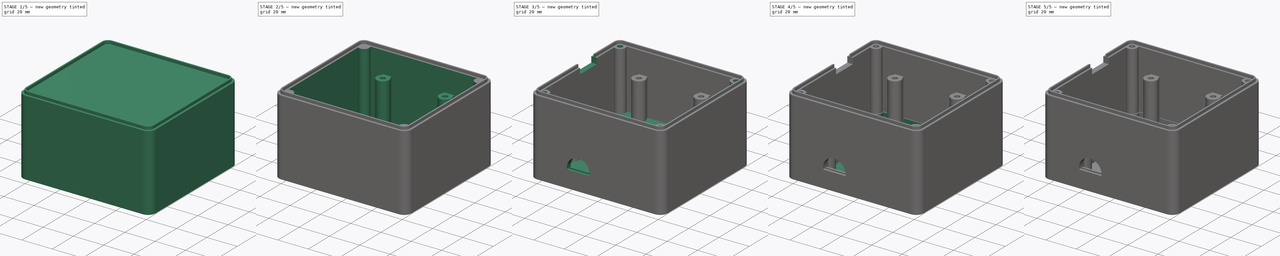
[diagram: build sequence overview — one tinted view per stage of 5, left to right]
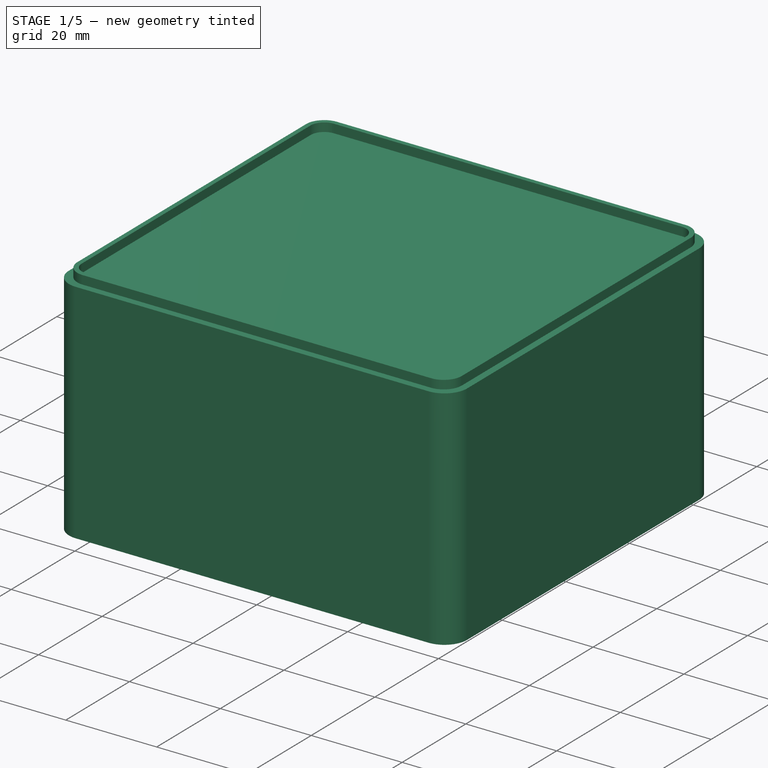
[diagram: stage 1 of 5 — iso view after this stage's code; geometry added in this stage tinted green]
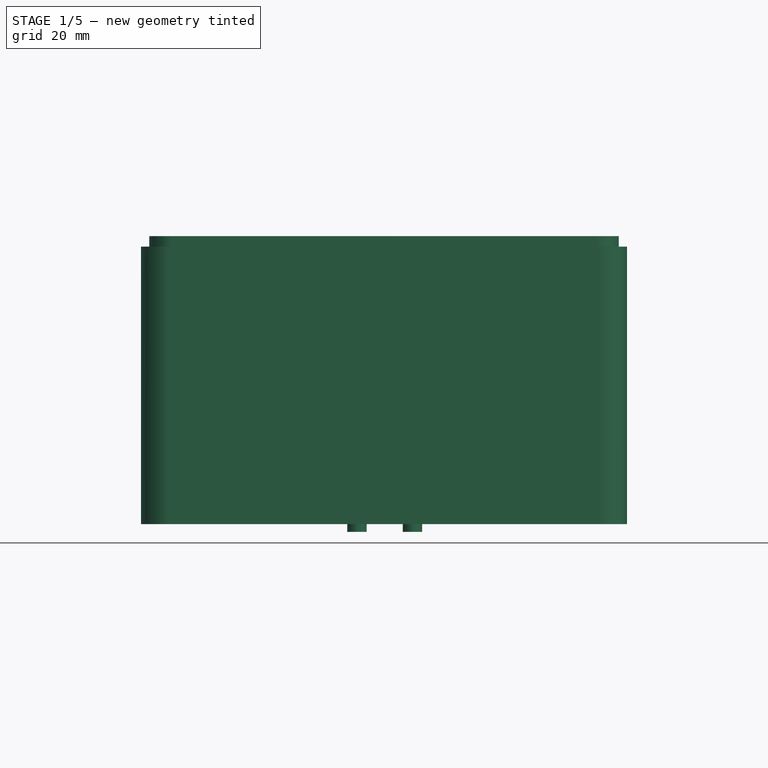
[diagram: stage 1 of 5 — front view after this stage's code; geometry added in this stage tinted green]
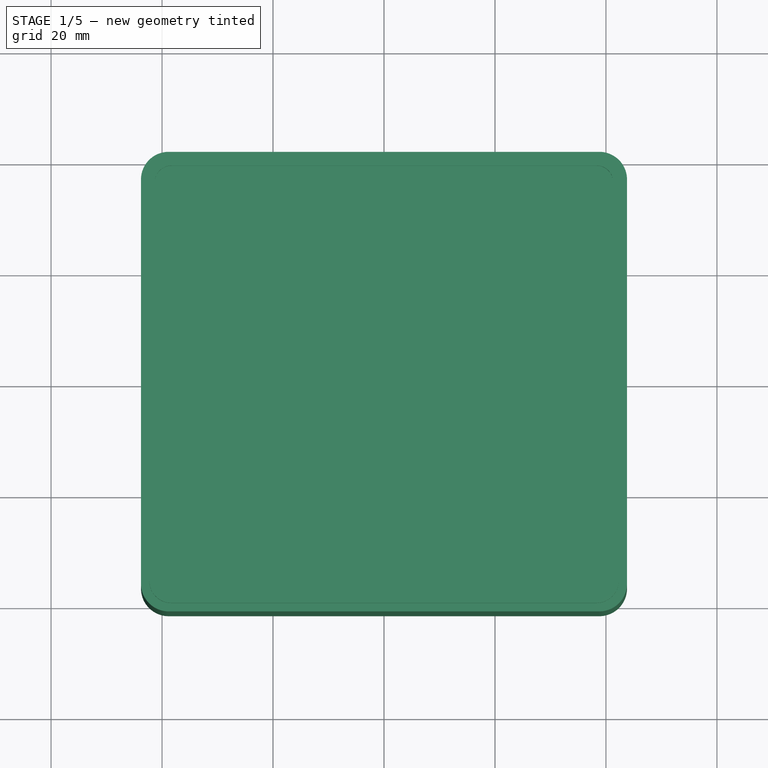
[diagram: stage 1 of 5 — top view after this stage's code; geometry added in this stage tinted green]
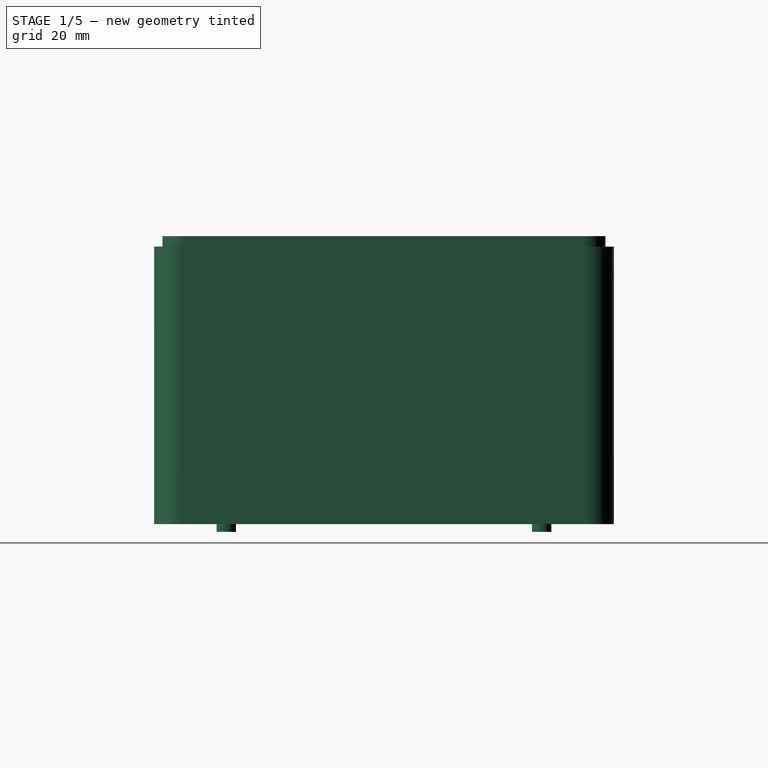
[diagram: stage 1 of 5 — right view after this stage's code; geometry added in this stage tinted green]
FCSTD DOCUMENT  (FreeCAD 0.20R29410 (Git))
Label: CASE DEFINITIVO MUTÁVEL VS 3.1
License: All rights reserved
LicenseURL: http://en.wikipedia.org/wiki/All_rights_reserved
objects: Sketcher::SketchObject×25, PartDesign::Pad×13, PartDesign::Plane×12, PartDesign::Pocket×9, PartDesign::Hole×6, PartDesign::Body×3, PartDesign::Chamfer×2
note: 100 computed .brp shape members not serialized (recipe doc carries the construction recipe); baked Part::Feature solids carry a one-line shape summary decoded from their .brp

FEATURE [Sketcher::SketchObject] Sketch  label="CASE_BRUTO"
  FullyConstrained = true
  MapMode = 5
  Support = -> [XY_Plane]
  sketch-geometry (10):
    g0: ArcOfCircle CenterX=-38.8 CenterY=36.42 CenterZ=0 NormalX=0 NormalY=0 NormalZ=1 AngleXU=0 Radius=5 StartAngle=1.5708 EndAngle=3.14159
    g1: LineSegment StartX=-38.8 StartY=41.42 StartZ=0 EndX=38.8 EndY=41.42 EndZ=0
    g2: ArcOfCircle CenterX=38.8 CenterY=36.42 CenterZ=0 NormalX=0 NormalY=0 NormalZ=1 AngleXU=0 Radius=5 StartAngle=5.1e-15 EndAngle=1.5708
    g3: LineSegment StartX=43.8 StartY=36.42 StartZ=0 EndX=43.8 EndY=-36.42 EndZ=0
    g4: ArcOfCircle CenterX=38.8 CenterY=-36.42 CenterZ=0 NormalX=0 NormalY=0 NormalZ=1 AngleXU=0 Radius=5 StartAngle=4.71239 EndAngle=6.28319
    g5: LineSegment StartX=38.8 StartY=-41.42 StartZ=0 EndX=-38.8 EndY=-41.42 EndZ=0
    g6: ArcOfCircle CenterX=-38.8 CenterY=-36.42 CenterZ=0 NormalX=0 NormalY=0 NormalZ=1 AngleXU=0 Radius=5 StartAngle=3.14159 EndAngle=4.71239
    g7: LineSegment StartX=-43.8 StartY=-36.42 StartZ=0 EndX=-43.8 EndY=36.42 EndZ=0
    g8: GeomPoint X=-43.8 Y=41.42 Z=0
    g9: GeomPoint X=43.8 Y=-41.42 Z=0
  constraints (23):
    c: Tangent(g0,g1) = 1.5708
    c: Tangent(g1,g2) = 1.5708
    c: Tangent(g2,g3) = 1.5708
    c: Tangent(g3,g4) = 1.5708
    c: Tangent(g4,g5) = 1.5708
    c: Tangent(g5,g6) = 1.5708
    c: Tangent(g6,g7) = 1.5708
    c: Tangent(g7,g0) = 1.5708
    c: Horizontal(g1)
    c: Horizontal(g5)
    c: Vertical(g3)
    c: Vertical(g7)
    c: Equal(g0,g2)
    c: Equal(g2,g4)
    c: Equal(g4,g6)
    c: PointOnObject(g8,g1)
    c: PointOnObject(g8,g7)
    c: PointOnObject(g9,g3)
    c: PointOnObject(g9,g5)
    c: DistanceX(g1,g1) = 77.6
    c: DistanceY(g3,g3) = 72.84
    c: Radius(g2) = 5
    c: Symmetric(g2,g6,g-1)
FEATURE [PartDesign::Pad] Pad  label="EXTRUSAO_CASE_BRUTO"
  Direction = (0,0,1)
  Length = 50
  Length2 = 10
  Profile = -> Sketch
  ReferenceAxis = -> Sketch [N_Axis]
  Type = 0
FEATURE [Sketcher::SketchObject] Sketch001  label="ENCAIXE_TAMPA"
  AttachmentOffset = pos=(0,0,50) rot=(0,0,1;0rad)
  ExternalGeometry = -> [Pad]
  FullyConstrained = true
  MapMode = 5
  Placement = pos=(0,0,50) rot=(0,0,1;0rad)
  Support = -> [XY_Plane]
  expr: .AttachmentOffset.Base.z = <<EXTRUSAO_CASE_BRUTO>>.Length
  sketch-geometry (20):
    g0: ArcOfCircle CenterX=-38.3 CenterY=35.92 CenterZ=0 NormalX=0 NormalY=0 NormalZ=1 AngleXU=0 Radius=4 StartAngle=1.5708 EndAngle=3.14159
    g1: LineSegment StartX=-38.3 StartY=39.92 StartZ=0 EndX=38.3 EndY=39.92 EndZ=0
    g2: ArcOfCircle CenterX=38.3 CenterY=35.92 CenterZ=0 NormalX=0 NormalY=0 NormalZ=1 AngleXU=0 Radius=4 StartAngle=3e-16 EndAngle=1.5708
    g3: LineSegment StartX=42.3 StartY=35.92 StartZ=0 EndX=42.3 EndY=-35.92 EndZ=0
    g4: ArcOfCircle CenterX=38.3 CenterY=-35.92 CenterZ=0 NormalX=0 NormalY=0 NormalZ=1 AngleXU=0 Radius=4 StartAngle=4.71239 EndAngle=6.28319
    g5: LineSegment StartX=38.3 StartY=-39.92 StartZ=0 EndX=-38.3 EndY=-39.92 EndZ=0
    g6: ArcOfCircle CenterX=-38.3 CenterY=-35.92 CenterZ=0 NormalX=0 NormalY=0 NormalZ=1 AngleXU=0 Radius=4 StartAngle=3.14159 EndAngle=4.71239
    g7: LineSegment StartX=-42.3 StartY=-35.92 StartZ=0 EndX=-42.3 EndY=35.92 EndZ=0
    g8: GeomPoint X=-42.3 Y=39.92 Z=0
    g9: GeomPoint X=42.3 Y=-39.92 Z=0
    g10: ArcOfCircle CenterX=-38.3 CenterY=35.92 CenterZ=0 NormalX=0 NormalY=0 NormalZ=1 AngleXU=0 Radius=3 StartAngle=1.5708 EndAngle=3.14159
    g11: LineSegment StartX=-38.3 StartY=38.92 StartZ=0 EndX=38.3 EndY=38.92 EndZ=0
    g12: ArcOfCircle CenterX=38.3 CenterY=35.92 CenterZ=0 NormalX=0 NormalY=0 NormalZ=1 AngleXU=0 Radius=3 StartAngle=1.2e-15 EndAngle=1.5708
    g13: LineSegment StartX=41.3 StartY=35.92 StartZ=0 EndX=41.3 EndY=-35.92 EndZ=0
    g14: ArcOfCircle CenterX=38.3 CenterY=-35.92 CenterZ=0 NormalX=0 NormalY=0 NormalZ=1 AngleXU=0 Radius=3 StartAngle=4.71239 EndAngle=6.28319
    g15: LineSegment StartX=38.3 StartY=-38.92 StartZ=0 EndX=-38.3 EndY=-38.92 EndZ=0
    g16: ArcOfCircle CenterX=-38.3 CenterY=-35.92 CenterZ=0 NormalX=0 NormalY=0 NormalZ=1 AngleXU=0 Radius=3 StartAngle=3.14159 EndAngle=4.71239
    g17: LineSegment StartX=-41.3 StartY=-35.92 StartZ=0 EndX=-41.3 EndY=35.92 EndZ=0
    g18: GeomPoint X=-41.3 Y=38.92 Z=0
    g19: GeomPoint X=41.3 Y=-38.92 Z=0
  constraints (47):
    c: Tangent(g0,g1) = 1.5708
    c: Tangent(g1,g2) = 1.5708
    c: Tangent(g2,g3) = 1.5708
    c: Tangent(g3,g4) = 1.5708
    c: Tangent(g4,g5) = 1.5708
    c: Tangent(g5,g6) = 1.5708
    c: Tangent(g6,g7) = 1.5708
    c: Tangent(g7,g0) = 1.5708
    c: Horizontal(g1)
    c: Horizontal(g5)
    c: Vertical(g3)
    c: Vertical(g7)
    c: Equal(g0,g2)
    c: Equal(g2,g4)
    c: Equal(g4,g6)
    c: PointOnObject(g8,g1)
    c: PointOnObject(g8,g7)
    c: PointOnObject(g9,g3)
    c: PointOnObject(g9,g5)
    c: DistanceX(g-10,g0) = 1.5
    c: DistanceY(g-8,g5) = 1.5
    c: Radius(g0) = 4
    c: DistanceY(g0,g-10) = 1.5
    c: DistanceX(g2,g-5) = 1.5
    c: Tangent(g10,g11) = 1.5708
    c: Tangent(g11,g12) = 1.5708
    c: Tangent(g12,g13) = 1.5708
    c: Tangent(g13,g14) = 1.5708
    c: Tangent(g14,g15) = 1.5708
    c: Tangent(g15,g16) = 1.5708
    c: Tangent(g16,g17) = 1.5708
    c: Tangent(g17,g10) = 1.5708
    c: Horizontal(g11)
    c: Horizontal(g15)
    c: Vertical(g13)
    c: Vertical(g17)
    c: Equal(g10,g12)
    c: Equal(g12,g14)
    c: Equal(g14,g16)
    c: PointOnObject(g18,g11)
    c: PointOnObject(g18,g17)
    c: PointOnObject(g19,g13)
    c: PointOnObject(g19,g15)
    c: Radius(g12) = 3
    c: Symmetric(g12,g16,g-1)
    c: DistanceX(g13,g3) = 1
    c: DistanceY(g5,g15) = 1
FEATURE [PartDesign::Pad] Pad001  label="ENCAIXE_TAMPA001"
  BaseFeature = -> Pad
  Direction = (0,0,1)
  Length = 1.9
  Length2 = 10
  Profile = -> Sketch001
  ReferenceAxis = -> Sketch001 [N_Axis]
  Type = 0
FEATURE [PartDesign::Body] Body  label="CASE_NO_BREAKABLE"
  Group = -> [Sketch,Pad,Sketch001,Pad001,DatumPlane,Sketch006,Pocket,Sketch007,Pad002,DatumPlane002,Sketch008,Pad003,DatumPlane003,Sketch009,Pad004,Hole,DatumPlane004,Sketch010,Pad005,DatumPlane006,Sketch012,Pocket002,DatumPlane007,Sketch013,Sketch034,Hole004,Hole005,DatumPlane012,Sketch036,Pocket012]
  Origin = -> Origin
  Placement = pos=(0,0,232) rot=(0,0,1;0rad)
  Tip = -> Pocket012
FEATURE [PartDesign::Plane] DatumPlane013  label="DATUM_BASE"
  Length = 61.1212
  MapMode = 5
  ResizeMode = 0
  Support = -> [XY_Plane002]
  Width = 72.9612
FEATURE [Sketcher::SketchObject] Sketch037  label="SKETCH_BASE"
  FullyConstrained = true
  MapMode = 5
  Support = -> [DatumPlane013]
  sketch-geometry (4):
    g0: LineSegment StartX=-9.35 StartY=30.92 StartZ=0 EndX=9.35 EndY=30.92 EndZ=0
    g1: LineSegment StartX=9.35 StartY=30.92 StartZ=0 EndX=9.35 EndY=-30.92 EndZ=0
    g2: LineSegment StartX=9.35 StartY=-30.92 StartZ=0 EndX=-9.35 EndY=-30.92 EndZ=0
    g3: LineSegment StartX=-9.35 StartY=-30.92 StartZ=0 EndX=-9.35 EndY=30.92 EndZ=0
  constraints (11):
    c: Coincident(g0,g1)
    c: Coincident(g1,g2)
    c: Coincident(g2,g3)
    c: Coincident(g3,g0)
    c: Horizontal(g0)
    c: Horizontal(g2)
    c: Vertical(g1)
    c: Vertical(g3)
    c: Symmetric(g0,g2,g-1)
    c: DistanceY(g1,g1) = 61.84
    c: DistanceX(g0,g0) = 18.7
FEATURE [PartDesign::Pad] Pad011  label="PAD_BASE"
  Direction = (0,0,1)
  Length = 2
  Length2 = 10
  Profile = -> Sketch037
  ReferenceAxis = -> Sketch037 [N_Axis]
  Type = 0
FEATURE [PartDesign::Plane] DatumPlane014  label="DATUM_PARAFUSOS"
  AttachmentOffset = pos=(0,0,2) rot=(0,0,1;0rad)
  Length = 61.1212
  MapMode = 5
  Placement = pos=(0,0,2) rot=(0,0,1;0rad)
  ResizeMode = 0
  Support = -> [XY_Plane002]
  Width = 72.9612
  expr: .AttachmentOffset.Base.z = <<PAD_BASE>>.Length
FEATURE [Sketcher::SketchObject] Sketch038  label="SKETCH_PARAFUSOS"
  ExternalGeometry = -> [Pad011]
  FullyConstrained = true
  MapMode = 5
  Placement = pos=(0,0,2) rot=(0,0,1;0rad)
  Support = -> [DatumPlane014]
  sketch-geometry (4):
    g0: Circle CenterX=-4.88 CenterY=28.42 CenterZ=0 NormalX=0 NormalY=0 NormalZ=1 AngleXU=0 Radius=1.75
    g1: Circle CenterX=5.12 CenterY=28.42 CenterZ=0 NormalX=0 NormalY=0 NormalZ=1 AngleXU=0 Radius=1.75
    g2: Circle CenterX=-4.88 CenterY=-28.42 CenterZ=0 NormalX=0 NormalY=0 NormalZ=1 AngleXU=0 Radius=1.75
    g3: Circle CenterX=5.12 CenterY=-28.42 CenterZ=0 NormalX=0 NormalY=0 NormalZ=1 AngleXU=0 Radius=1.75
  constraints (12):
    c: DistanceY(g1,g-3) = 2.5
    c: DistanceY(g0,g-3) = 2.5
    c: Diameter(g0) = 3.5
    c: DistanceX(g0,g1) = 10
    c: Diameter(g1) = 3.5
    c: Equal(g3,g2)
    c: Diameter(g3) = 3.5
    c: Vertical(g2,g0)
    c: Vertical(g3,g1)
    c: DistanceY(g2,g0) = 56.84
    c: DistanceY(g3,g1) = 56.84
    c: DistanceX(g1,g-4) = 4.23
FEATURE [PartDesign::Plane] DatumPlane015  label="DATUM_BOTOES"
  Length = 61.1212
  MapMode = 5
  ResizeMode = 0
  Support = -> [XY_Plane002]
  Width = 72.9612
FEATURE [Sketcher::SketchObject] Sketch039  label="SKETCH_BOTOES"
  FullyConstrained = false
  MapMode = 5
  Support = -> [DatumPlane015]
  sketch-geometry (18):
    g0: LineSegment StartX=6.5 StartY=21.92 StartZ=0 EndX=-6.5 EndY=21.92 EndZ=0
    g1: LineSegment StartX=-6.5 StartY=21.92 StartZ=0 EndX=-6.5 EndY=9.92 EndZ=0
    g2: LineSegment StartX=-6.5 StartY=9.92 StartZ=0 EndX=6.5 EndY=9.92 EndZ=0
    g3: LineSegment StartX=6.5 StartY=9.92 StartZ=0 EndX=6.5 EndY=21.92 EndZ=0
    g4: GeomPoint X=0 Y=15.92 Z=0
    g5: Circle CenterX=0 CenterY=15.92 CenterZ=0 NormalX=0 NormalY=0 NormalZ=1 AngleXU=0 Radius=3.5
    g6: LineSegment StartX=6.5 StartY=5.42 StartZ=0 EndX=-6.5 EndY=5.42 EndZ=0
    g7: LineSegment StartX=-6.5 StartY=5.42 StartZ=0 EndX=-6.5 EndY=-6.58 EndZ=0
    g8: LineSegment StartX=-6.5 StartY=-6.58 StartZ=0 EndX=6.5 EndY=-6.58 EndZ=0
    g9: LineSegment StartX=6.5 StartY=-6.58 StartZ=0 EndX=6.5 EndY=5.42 EndZ=0
    g10: GeomPoint X=0 Y=-0.58 Z=0
    g11: LineSegment StartX=6.5 StartY=-11.08 StartZ=0 EndX=-6.5 EndY=-11.08 EndZ=0
    g12: LineSegment StartX=-6.5 StartY=-11.08 StartZ=0 EndX=-6.5 EndY=-23.08 EndZ=0
    g13: LineSegment StartX=-6.5 StartY=-23.08 StartZ=0 EndX=6.5 EndY=-23.08 EndZ=0
    g14: LineSegment StartX=6.5 StartY=-23.08 StartZ=0 EndX=6.5 EndY=-11.08 EndZ=0
    g15: GeomPoint X=0 Y=-17.08 Z=0
    g16: Circle CenterX=0 CenterY=-0.58 CenterZ=0 NormalX=0 NormalY=0 NormalZ=1 AngleXU=0 Radius=3.5
    g17: Circle CenterX=0 CenterY=-17.08 CenterZ=0 NormalX=0 NormalY=0 NormalZ=1 AngleXU=0 Radius=3.5
  constraints (44):
    c: Coincident(g0,g1)
    c: Coincident(g1,g2)
    c: Coincident(g2,g3)
    c: Coincident(g3,g0)
    c: Horizontal(g0)
    c: Horizontal(g2)
    c: Vertical(g1)
    c: Vertical(g3)
    c: DistanceX(g0,g0) = 13
    c: DistanceY(g1,g1) = 12
    c: PointOnObject(g4,g-2)
    c: Symmetric(g0,g2,g4)
    c: Coincident(g5,g4)
    c: Diameter(g5) = 7
    c: Coincident(g6,g7)
    c: Coincident(g7,g8)
    c: Coincident(g8,g9)
    c: Coincident(g9,g6)
    c: Horizontal(g6)
    c: Horizontal(g8)
    c: Vertical(g7)
    c: Vertical(g9)
    c: PointOnObject(g10,g-2)
    c: DistanceX(g6,g6) = 13
    c: DistanceY(g7,g7) = 12
    c: Symmetric(g6,g8,g10)
    c: DistanceY(g6,g2) = 4.5
    c: Coincident(g11,g12)
    c: Coincident(g12,g13)
    c: Coincident(g13,g14)
    c: Coincident(g14,g11)
    c: Horizontal(g11)
    c: Horizontal(g13)
    c: Vertical(g12)
    c: Vertical(g14)
    c: PointOnObject(g15,g-2)
    c: Symmetric(g11,g13,g15)
    c: DistanceX(g11,g11) = 13
    c: DistanceY(g12,g12) = 12
    c: DistanceY(g11,g7) = 4.5
    c: Coincident(g16,g10)
    c: Coincident(g17,g15)
    c: Equal(g16,g17)
    c: Diameter(g16) = 7
FEATURE [PartDesign::Pocket] Pocket013
  BaseFeature = -> Pad011
  Direction = (0,0,-1)
  Length = 5
  Length2 = 5
  Profile = -> Sketch039
  ReferenceAxis = -> Sketch039 [N_Axis]
  Reversed = true
  Type = 0
FEATURE [PartDesign::Pad] Pad012
  BaseFeature = -> Pocket013
  Direction = (0,0,1)
  Length = 3.4
  Length2 = 10
  Profile = -> Sketch038
  ReferenceAxis = -> Sketch038 [N_Axis]
  Reversed = true
  Type = 0
FEATURE [PartDesign::Hole] Hole006
  BaseFeature = -> Pad012
  CustomThreadClearance = 0
  Depth = 130.684
  DepthType = 1
  Diameter = 2.42
  DrillForDepth = false
  DrillPoint = 1
  DrillPointAngle = 118
  HoleCutCountersinkAngle = 90
  HoleCutCustomValues = false
  HoleCutDepth = 0
  HoleCutDiameter = 6.1
  HoleCutType = 0
  ModelThread = false
  Profile = -> Pad012 [Face20,Face21,Face19,Face18]
  Tapered = false
  TaperedAngle = 90
  ThreadClass = 0
  ThreadDepth = 130.684
  ThreadDepthType = 0
  ThreadDirection = 0
  ThreadFit = 0
  ThreadSize = 7
  ThreadType = 1
  Threaded = false
  UseCustomThreadClearance = false
FEATURE [PartDesign::Body] Body002  label="ENCAIXE_BOTOES"
  Group = -> [DatumPlane013,Sketch037,Pad011,DatumPlane014,Sketch038,DatumPlane015,Sketch039,Pocket013,Pad012,Hole006]
  Origin = -> Origin002
  Placement = pos=(30.25,0,285.65) rot=(0,0,1;0rad)
  Tip = -> Hole006
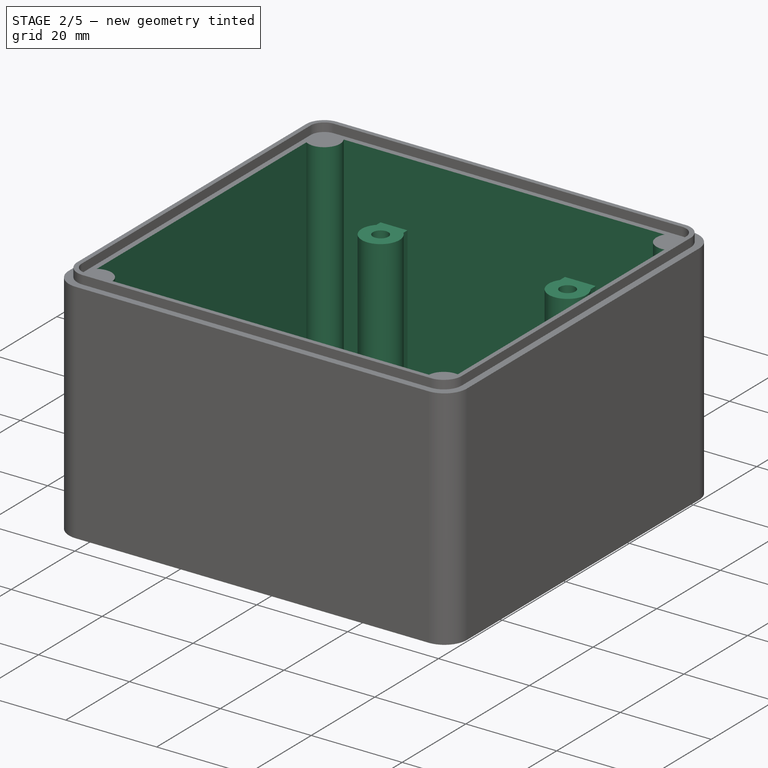
[diagram: stage 2 of 5 — iso view after this stage's code; geometry added in this stage tinted green]
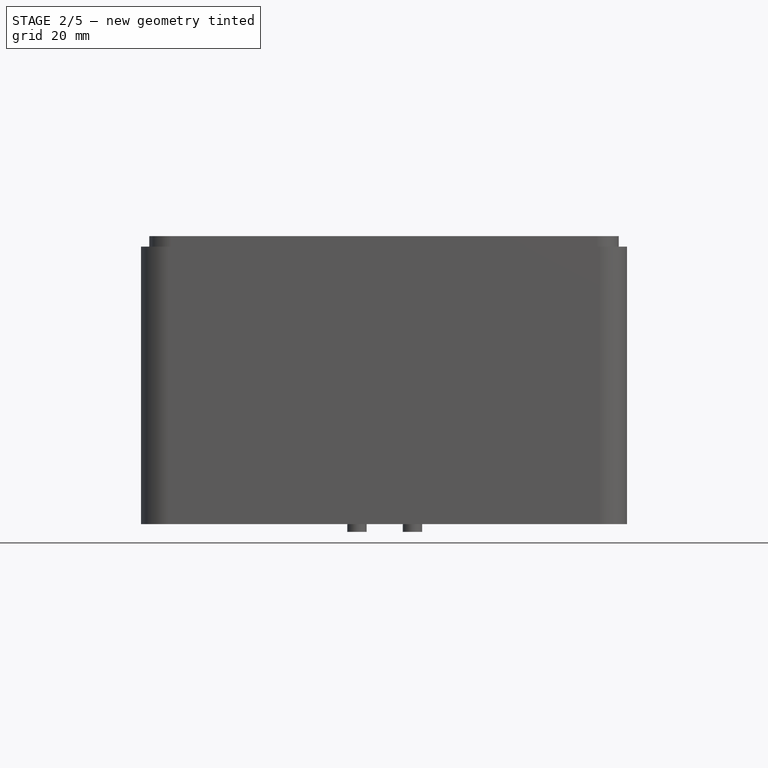
[diagram: stage 2 of 5 — front view after this stage's code; geometry added in this stage tinted green]
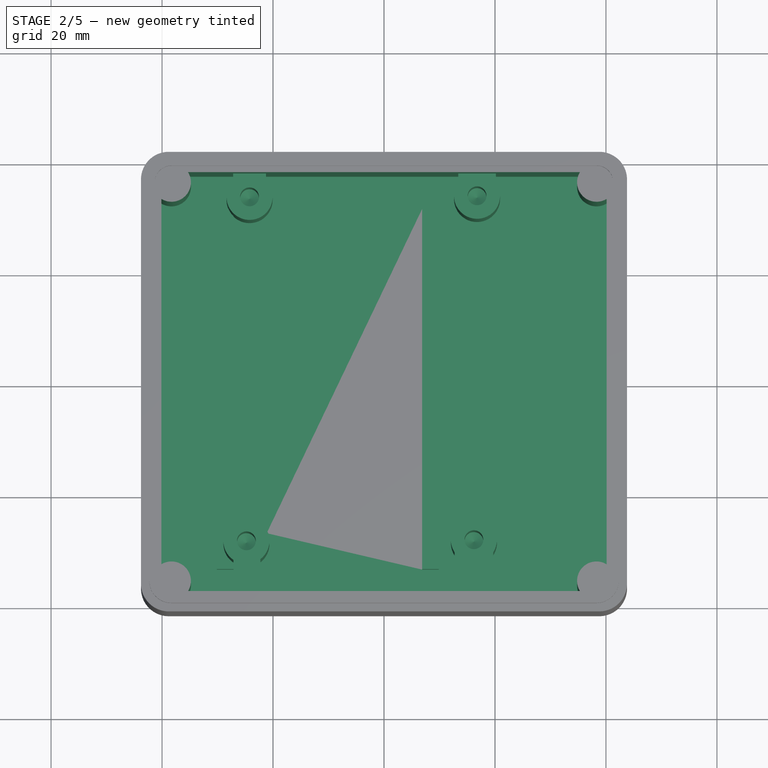
[diagram: stage 2 of 5 — top view after this stage's code; geometry added in this stage tinted green]
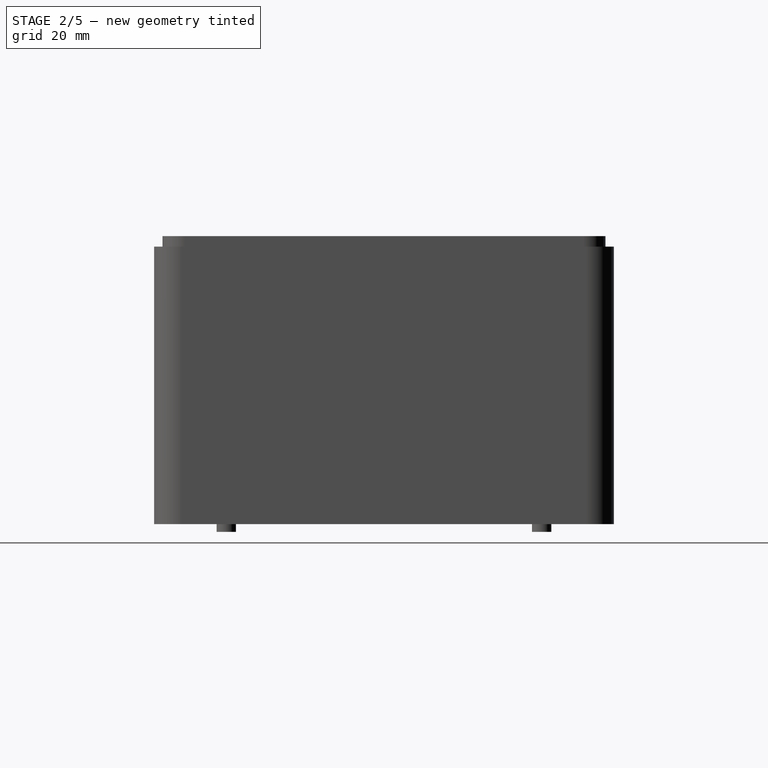
[diagram: stage 2 of 5 — right view after this stage's code; geometry added in this stage tinted green]
FEATURE [PartDesign::Plane] DatumPlane
  AttachmentOffset = pos=(0,0,50) rot=(0,0,1;0rad)
  Length = 104.637
  MapMode = 5
  Placement = pos=(0,0,50) rot=(0,0,1;0rad)
  ResizeMode = 0
  Support = -> [XY_Plane]
  Width = 99.8773
  expr: .AttachmentOffset.Base.z = <<EXTRUSAO_CASE_BRUTO>>.Length
FEATURE [Sketcher::SketchObject] Sketch006
  ExternalGeometry = -> [Pad001]
  FullyConstrained = true
  MapMode = 5
  Placement = pos=(0,0,50) rot=(0,0,1;0rad)
  Support = -> [DatumPlane]
  sketch-geometry (8):
    g0: LineSegment StartX=-40.13 StartY=32.9365 StartZ=0 EndX=-40.13 EndY=-32.9365 EndZ=0
    g1: LineSegment StartX=40.13 StartY=32.9365 StartZ=0 EndX=40.13 EndY=-32.9365 EndZ=0
    g2: LineSegment StartX=-35.3165 StartY=-37.75 StartZ=0 EndX=35.3165 EndY=-37.75 EndZ=0
    g3: LineSegment StartX=-35.3165 StartY=37.75 StartZ=0 EndX=35.3165 EndY=37.75 EndZ=0
    g4: ArcOfCircle CenterX=38.3 CenterY=35.92 CenterZ=0 NormalX=0 NormalY=0 NormalZ=1 AngleXU=0 Radius=3.5 StartAngle=2.59139 EndAngle=5.26259
    g5: ArcOfCircle CenterX=-38.3 CenterY=-35.92 CenterZ=0 NormalX=0 NormalY=0 NormalZ=1 AngleXU=0 Radius=3.5 StartAngle=5.73299 EndAngle=8.40418
    g6: ArcOfCircle CenterX=38.3 CenterY=-35.92 CenterZ=0 NormalX=0 NormalY=0 NormalZ=1 AngleXU=0 Radius=3.5 StartAngle=1.0206 EndAngle=3.69179
    g7: ArcOfCircle CenterX=-38.3 CenterY=35.92 CenterZ=0 NormalX=0 NormalY=0 NormalZ=1 AngleXU=0 Radius=3.5 StartAngle=4.16219 EndAngle=6.83338
  constraints (24):
    c: Vertical(g0)
    c: Vertical(g1)
    c: Horizontal(g2)
    c: Horizontal(g3)
    c: Coincident(g4,g-10)
    c: Coincident(g4,g3)
    c: Coincident(g4,g1)
    c: Coincident(g5,g-6)
    c: Coincident(g5,g0)
    c: Coincident(g5,g2)
    c: Coincident(g6,g-8)
    c: Coincident(g6,g1)
    c: Coincident(g6,g2)
    c: Radius(g5) = 3.5
    c: DistanceX(g-6,g0) = 1.17
    c: DistanceY(g-7,g2) = 1.17
    c: DistanceX(g1,g-9) = 1.17
    c: DistanceY(g3,g-10) = 1.17
    c: Equal(g4,g6)
    c: Coincident(g7,g-3)
    c: Coincident(g7,g3)
    c: Coincident(g7,g0)
    c: Equal(g5,g7)
    c: Equal(g7,g4)
FEATURE [PartDesign::Pocket] Pocket  label="FUNDO_CASE"
  BaseFeature = -> Pad001
  Direction = (0,0,-1)
  Length = 47.8
  Length2 = 5
  Profile = -> Sketch006
  ReferenceAxis = -> Sketch006 [N_Axis]
  Type = 0
FEATURE [Sketcher::SketchObject] Sketch007  label="MARCACAO_FURO"
  ExternalGeometry = -> [Pocket]
  FullyConstrained = true
  MapMode = 5
  Placement = pos=(0,0,2.2) rot=(0,0,1;0rad)
  sketch-geometry (18):
    g0: Circle CenterX=-24.23 CenterY=33.55 CenterZ=0 NormalX=0 NormalY=0 NormalZ=1 AngleXU=0 Radius=1.5
    g1: Circle CenterX=16.77 CenterY=33.75 CenterZ=0 NormalX=0 NormalY=0 NormalZ=1 AngleXU=0 Radius=1.5
    g2: Circle CenterX=-24.8 CenterY=-28.45 CenterZ=0 NormalX=0 NormalY=0 NormalZ=1 AngleXU=0 Radius=1.5
    g3: Circle CenterX=16.2 CenterY=-28.25 CenterZ=0 NormalX=0 NormalY=0 NormalZ=1 AngleXU=0 Radius=1.5
    g4: LineSegment StartX=-24.23 StartY=33.55 StartZ=0 EndX=-24.23 EndY=35.05 EndZ=0
    g5: LineSegment StartX=-24.23 StartY=35.05 StartZ=0 EndX=-24.23 EndY=37.75 EndZ=0
    g6: LineSegment StartX=-22.73 StartY=33.55 StartZ=0 EndX=-40.13 EndY=33.55 EndZ=0
    g7: GeomPoint X=-25.73 Y=33.55 Z=0
    g8: LineSegment StartX=16.77 StartY=33.75 StartZ=0 EndX=16.77 EndY=37.75 EndZ=0
    g9: LineSegment StartX=16.77 StartY=33.75 StartZ=0 EndX=15.27 EndY=33.75 EndZ=0
    g10: LineSegment StartX=16.77 StartY=33.75 StartZ=0 EndX=16.77 EndY=32.25 EndZ=0
    g11: GeomPoint X=16.77 Y=35.25 Z=0
    g12: LineSegment StartX=-24.23 StartY=33.55 StartZ=0 EndX=-24.23 EndY=32.05 EndZ=0
    g13: LineSegment StartX=-24.8 StartY=-28.45 StartZ=0 EndX=-24.8 EndY=-26.95 EndZ=0
    g14: LineSegment StartX=-23.3 StartY=-28.45 StartZ=0 EndX=-40.13 EndY=-28.45 EndZ=0
    g15: GeomPoint X=-26.3 Y=-28.45 Z=0
    g16: LineSegment StartX=16.2 StartY=-28.25 StartZ=0 EndX=14.7 EndY=-28.25 EndZ=0
    g17: LineSegment StartX=16.2 StartY=-28.25 StartZ=0 EndX=16.2 EndY=-26.75 EndZ=0
  constraints (53):
    c: Diameter(g0) = 3
    c: Diameter(g1) = 3
    c: Diameter(g2) = 3
    c: Diameter(g3) = 3
    c: Coincident(g4,g0)
    c: PointOnObject(g4,g0)
    c: Vertical(g4)
    c: Coincident(g5,g4)
    c: PointOnObject(g5,g-3)
    c: Vertical(g5)
    c: PointOnObject(g6,g0)
    c: PointOnObject(g6,g-5)
    c: Horizontal(g6)
    c: DistanceY(g4,g5) = 2.7
    c: PointOnObject(g0,g6)
    c: PointOnObject(g7,g0)
    c: PointOnObject(g7,g6)
    c: DistanceX(g6,g7) = 14.4
    c: Coincident(g8,g1)
    c: Vertical(g8)
    c: Coincident(g9,g1)
    c: PointOnObject(g9,g1)
    c: Horizontal(g9)
    c: Coincident(g10,g1)
    c: PointOnObject(g10,g1)
    c: Vertical(g10)
    c: PointOnObject(g11,g1)
    c: PointOnObject(g11,g8)
    c: PointOnObject(g8,g-3)
    c: DistanceX(g6,g9) = 38
    c: DistanceY(g11,g8) = 2.5
    c: Coincident(g12,g0)
    c: PointOnObject(g12,g0)
    c: Vertical(g12)
    c: Coincident(g13,g2)
    c: PointOnObject(g13,g2)
    c: Vertical(g13)
    c: PointOnObject(g14,g2)
    c: PointOnObject(g14,g-5)
    c: Horizontal(g14)
    c: PointOnObject(g2,g14)
    c: PointOnObject(g15,g2)
    c: PointOnObject(g15,g14)
    c: DistanceX(g14,g15) = 13.83
    c: DistanceY(g13,g12) = 59
    c: Coincident(g16,g3)
    c: PointOnObject(g16,g3)
    c: Horizontal(g16)
    c: Coincident(g17,g3)
    c: PointOnObject(g17,g3)
    c: Vertical(g17)
    c: DistanceX(g14,g16) = 38
    c: DistanceY(g17,g10) = 59
FEATURE [PartDesign::Pad] Pad002  label="EXTRUSAO_MARCACAO_FURO"
  BaseFeature = -> Pocket
  Direction = (0,0,1)
  Length = 33.5
  Length2 = 10
  Profile = -> Sketch007
  ReferenceAxis = -> Sketch007 [N_Axis]
  Type = 0
FEATURE [PartDesign::Plane] DatumPlane002  label="DATUM_SEGURA_BATERIA"
  AttachmentOffset = pos=(0,0,2.2) rot=(0,0,1;0rad)
  Length = 104.637
  MapMode = 5
  Placement = pos=(0,0,2.2) rot=(0,0,1;0rad)
  ResizeMode = 0
  Support = -> [XY_Plane]
  Width = 99.8773
FEATURE [Sketcher::SketchObject] Sketch008  label="Sketch_SEGURA_BATERIA"
  ExternalGeometry = -> [Pad002]
  FullyConstrained = true
  MapMode = 5
  Placement = pos=(0,0,2.2) rot=(0,0,1;0rad)
  Support = -> [DatumPlane002]
  sketch-geometry (10):
    g0: LineSegment StartX=-30.13 StartY=31.95 StartZ=0 EndX=-27.13 EndY=31.95 EndZ=0
    g1: LineSegment StartX=-27.13 StartY=31.95 StartZ=0 EndX=-27.13 EndY=-33.05 EndZ=0
    g2: LineSegment StartX=-27.13 StartY=-33.05 StartZ=0 EndX=-30.13 EndY=-33.05 EndZ=0
    g3: LineSegment StartX=-30.13 StartY=-33.05 StartZ=0 EndX=-30.13 EndY=31.95 EndZ=0
    g4: LineSegment StartX=9.87 StartY=31.95 StartZ=0 EndX=6.87 EndY=31.95 EndZ=0
    g5: LineSegment StartX=6.87 StartY=31.95 StartZ=0 EndX=6.87 EndY=-33.05 EndZ=0
    g6: LineSegment StartX=6.87 StartY=-33.05 StartZ=0 EndX=9.87 EndY=-33.05 EndZ=0
    g7: LineSegment StartX=9.87 StartY=-33.05 StartZ=0 EndX=9.87 EndY=31.95 EndZ=0
    g8: LineSegment StartX=-30.13 StartY=31.95 StartZ=0 EndX=-40.13 EndY=31.95 EndZ=0
    g9: LineSegment StartX=-30.13 StartY=31.95 StartZ=0 EndX=-30.13 EndY=37.75 EndZ=0
  constraints (30):
    c: Coincident(g0,g1)
    c: Coincident(g1,g2)
    c: Coincident(g2,g3)
    c: Coincident(g3,g0)
    c: Horizontal(g0)
    c: Horizontal(g2)
    c: Vertical(g1)
    c: Vertical(g3)
    c: Coincident(g4,g5)
    c: Coincident(g5,g6)
    c: Coincident(g6,g7)
    c: Coincident(g7,g4)
    c: Horizontal(g4)
    c: Horizontal(g6)
    c: Vertical(g5)
    c: Vertical(g7)
    c: Coincident(g8,g0)
    c: PointOnObject(g8,g-3)
    c: Horizontal(g8)
    c: Coincident(g9,g0)
    c: PointOnObject(g9,g-4)
    c: Vertical(g9)
    c: DistanceY(g9,g9) = 5.8
    c: DistanceX(g8,g8) = 10
    c: DistanceX(g2,g2) = 3
    c: DistanceX(g6,g6) = 3
    c: DistanceY(g7,g7) = 65
    c: DistanceY(g3,g3) = 65
    c: DistanceX(g0,g4) = 34
    c: Horizontal(g4,g0)
FEATURE [PartDesign::Pad] Pad003  label="EXTRUSAO_SEGURA_BATERIA"
  BaseFeature = -> Pad002
  Direction = (0,0,1)
  Length = 5
  Length2 = 10
  Profile = -> Sketch008
  ReferenceAxis = -> Sketch008 [N_Axis]
  Type = 0
FEATURE [PartDesign::Plane] DatumPlane003  label="DATUM_SUPORTE_PLACA"
  AttachmentOffset = pos=(0,0,2.2) rot=(0,0,1;0rad)
  Length = 104.637
  MapMode = 5
  Placement = pos=(0,0,2.2) rot=(0,0,1;0rad)
  ResizeMode = 0
  Support = -> [XY_Plane]
  Width = 99.8773
FEATURE [Sketcher::SketchObject] Sketch009  label="SKETCH_SUPORTE_PLACA"
  ExternalGeometry = -> [Pad003]
  FullyConstrained = true
  MapMode = 5
  Placement = pos=(0,0,2.2) rot=(0,0,1;0rad)
  Support = -> [DatumPlane003]
  sketch-geometry (4):
    g0: Circle CenterX=-24.23 CenterY=33.55 CenterZ=0 NormalX=0 NormalY=0 NormalZ=1 AngleXU=0 Radius=4.15
    g1: Circle CenterX=16.77 CenterY=33.75 CenterZ=0 NormalX=0 NormalY=0 NormalZ=1 AngleXU=0 Radius=4.15
    g2: Circle CenterX=-24.8 CenterY=-28.45 CenterZ=0 NormalX=0 NormalY=0 NormalZ=1 AngleXU=0 Radius=4.15
    g3: Circle CenterX=16.2 CenterY=-28.25 CenterZ=0 NormalX=0 NormalY=0 NormalZ=1 AngleXU=0 Radius=4.15
  constraints (8):
    c: Coincident(g0,g-5)
    c: Coincident(g1,g-4)
    c: Coincident(g3,g-7)
    c: Equal(g2,g3)
    c: Equal(g3,g1)
    c: Equal(g1,g0)
    c: Diameter(g2) = 8.3
    c: Coincident(g2,g-6)
FEATURE [PartDesign::Pad] Pad004
  BaseFeature = -> Pad003
  Direction = (0,0,1)
  Length = 33.5
  Length2 = 10
  Profile = -> Sketch009
  ReferenceAxis = -> Sketch009 [N_Axis]
  Type = 0
FEATURE [Sketcher::SketchObject] Sketch034
  FullyConstrained = false
  MapMode = 5
  Placement = pos=(0,0,2.2) rot=(0,0,1;0rad)
  Support = -> [DatumPlane002]
  sketch-geometry (7):
    g0: Circle CenterX=-33.23 CenterY=-15 CenterZ=0 NormalX=0 NormalY=0 NormalZ=1 AngleXU=0 Radius=2.5
    g1: GeomPoint X=-30.23 Y=0 Z=0
    g2: GeomPoint X=9.77 Y=0 Z=0
    g3: Circle CenterX=28.77 CenterY=-15 CenterZ=0 NormalX=0 NormalY=0 NormalZ=1 AngleXU=0 Radius=2.5
    g4: Circle CenterX=-33.23 CenterY=15 CenterZ=0 NormalX=0 NormalY=0 NormalZ=1 AngleXU=0 Radius=2.5
    g5: GeomPoint X=-33.23 Y=1e-16 Z=0
    g6: Circle CenterX=28.77 CenterY=15 CenterZ=0 NormalX=0 NormalY=0 NormalZ=1 AngleXU=0 Radius=2.5
  constraints (14):
    c: Diameter(g0) = 5
    c: DistanceX(g0,g1) = 3
    c: Diameter(g3) = 5
    c: DistanceX(g2,g3) = 19
    c: PointOnObject(g2,g-1)
    c: PointOnObject(g1,g-1)
    c: Diameter(g4) = 5
    c: DistanceY(g0,g4) = 30
    c: PointOnObject(g5,g-1)
    c: Symmetric(g0,g4,g5)
    c: Horizontal(g3,g0)
    c: Diameter(g6) = 5
    c: Vertical(g3,g6)
    c: Horizontal(g6,g4)
FEATURE [PartDesign::Hole] Hole
  BaseFeature = -> Pad004
  CustomThreadClearance = 0
  Depth = 19
  DepthType = 0
  Diameter = 3.4
  DrillForDepth = false
  DrillPoint = 1
  DrillPointAngle = 120
  HoleCutCountersinkAngle = 90
  HoleCutCustomValues = false
  HoleCutDepth = 0
  HoleCutDiameter = 6.1
  HoleCutType = 0
  ModelThread = false
  Profile = -> Pad004 [Face53,Face59,Face60,Edge151,Face61]
  Tapered = false
  TaperedAngle = 90
  ThreadClass = 0
  ThreadDepth = 19
  ThreadDepthType = 0
  ThreadDirection = 0
  ThreadFit = 0
  ThreadSize = 9
  ThreadType = 1
  Threaded = false
  UseCustomThreadClearance = false
FEATURE [Sketcher::SketchObject] Sketch010  label="SKETCH_SEGUA_SUPORTE_PLACA"
  ExternalGeometry = -> [Hole]
  FullyConstrained = true
  MapMode = 5
  Placement = pos=(0,0,2.2) rot=(0,0,1;0rad)
  Support = -> [DatumPlane004]
  sketch-geometry (18):
    g0: LineSegment StartX=-27.1986 StartY=36.45 StartZ=0 EndX=-27.1986 EndY=37.75 EndZ=0
    g1: LineSegment StartX=-27.1986 StartY=37.75 StartZ=0 EndX=-21.2614 EndY=37.75 EndZ=0
    g2: LineSegment StartX=-21.2614 StartY=37.75 StartZ=0 EndX=-21.2614 EndY=36.45 EndZ=0
    g3: ArcOfCircle CenterX=16.77 CenterY=33.75 CenterZ=0 NormalX=0 NormalY=0 NormalZ=1 AngleXU=0 Radius=4.15 StartAngle=0.61666 EndAngle=1.30111
    g4: LineSegment StartX=17.8757 StartY=37.75 StartZ=0 EndX=20.1556 EndY=37.75 EndZ=0
    g5: LineSegment StartX=20.1556 StartY=37.75 StartZ=0 EndX=20.1556 EndY=36.15 EndZ=0
    g6: LineSegment StartX=15.6643 StartY=37.75 StartZ=0 EndX=13.3844 EndY=37.75 EndZ=0
    g7: LineSegment StartX=13.3844 StartY=37.75 StartZ=0 EndX=13.3844 EndY=36.15 EndZ=0
    g8: ArcOfCircle CenterX=16.77 CenterY=33.75 CenterZ=0 NormalX=0 NormalY=0 NormalZ=1 AngleXU=0 Radius=4.15 StartAngle=1.84048 EndAngle=2.52493
    g9: LineSegment StartX=-22.2836 StartY=-31.75 StartZ=0 EndX=-22.2836 EndY=-37.75 EndZ=0
    g10: LineSegment StartX=-22.2836 StartY=-37.75 StartZ=0 EndX=-27.13 EndY=-37.75 EndZ=0
    g11: LineSegment StartX=-27.13 StartY=-37.75 StartZ=0 EndX=-27.13 EndY=-31.8842 EndZ=0
    g12: ArcOfCircle CenterX=16.2 CenterY=-28.25 CenterZ=0 NormalX=0 NormalY=0 NormalZ=1 AngleXU=0 Radius=4.15 StartAngle=3.71748 EndAngle=5.7073
    g13: LineSegment StartX=12.7194 StartY=-30.51 StartZ=0 EndX=12.7194 EndY=-37.75 EndZ=0
    g14: LineSegment StartX=12.7194 StartY=-37.75 StartZ=0 EndX=19.6806 EndY=-37.75 EndZ=0
    g15: LineSegment StartX=19.6806 StartY=-37.75 StartZ=0 EndX=19.6806 EndY=-30.51 EndZ=0
    g16: ArcOfCircle CenterX=-24.23 CenterY=33.55 CenterZ=0 NormalX=0 NormalY=0 NormalZ=1 AngleXU=0 Radius=4.15 StartAngle=0.773712 EndAngle=2.36788
    g17: ArcOfCircle CenterX=-24.8 CenterY=-28.45 CenterZ=0 NormalX=0 NormalY=0 NormalZ=1 AngleXU=0 Radius=4.15 StartAngle=4.11626 EndAngle=5.36388
  constraints (54):
    c: Vertical(g0)
    c: Coincident(g1,g0)
    c: Horizontal(g1)
    c: Vertical(g2)
    c: Coincident(g1,g2)
    c: DistanceY(g2,g2) = 1.3
    c: DistanceY(g0,g0) = 1.3
    c: Horizontal(g4)
    c: Coincident(g5,g4)
    c: Vertical(g5)
    c: Horizontal(g6)
    c: Coincident(g7,g6)
    c: Vertical(g7)
    c: Coincident(g8,g7)
    c: Coincident(g3,g5)
    c: Equal(g3,g8)
    c: Coincident(g3,g4)
    c: Coincident(g8,g6)
    c: Coincident(g3,g8)
    c: DistanceY(g5,g5) = 1.6
    c: DistanceY(g7,g7) = 1.6
    c: Vertical(g9)
    c: Coincident(g10,g9)
    c: Horizontal(g10)
    c: Coincident(g11,g10)
    c: Vertical(g11)
    c: DistanceY(g9,g9) = 6
    c: Vertical(g13)
    c: Coincident(g14,g13)
    c: Horizontal(g14)
    c: Coincident(g15,g14)
    c: Vertical(g15)
    c: Coincident(g12,g15)
    c: Coincident(g12,g13)
    c: DistanceY(g15,g15) = 7.24
    c: DistanceY(g13,g13) = 7.24
    c: PointOnObject(g6,g-4)
    c: PointOnObject(g4,g-4)
    c: Coincident(g3,g-6)
    c: PointOnObject(g7,g-6)
    c: PointOnObject(g0,g-3)
    c: PointOnObject(g0,g-4)
    c: Coincident(g16,g-3)
    c: Coincident(g16,g2)
    c: PointOnObject(g16,g0)
    c: PointOnObject(g2,g-3)
    c: Coincident(g11,g-8)
    c: PointOnObject(g10,g-9)
    c: Coincident(g17,g-7)
    c: Coincident(g17,g11)
    c: Coincident(g17,g9)
    c: Coincident(g12,g-10)
    c: PointOnObject(g12,g-10)
    c: PointOnObject(g13,g-9)
FEATURE [PartDesign::Pad] Pad005
  BaseFeature = -> Hole
  Direction = (0,0,1)
  Length = 33.5
  Length2 = 10
  Profile = -> Sketch010
  ReferenceAxis = -> Sketch010 [N_Axis]
  Type = 0
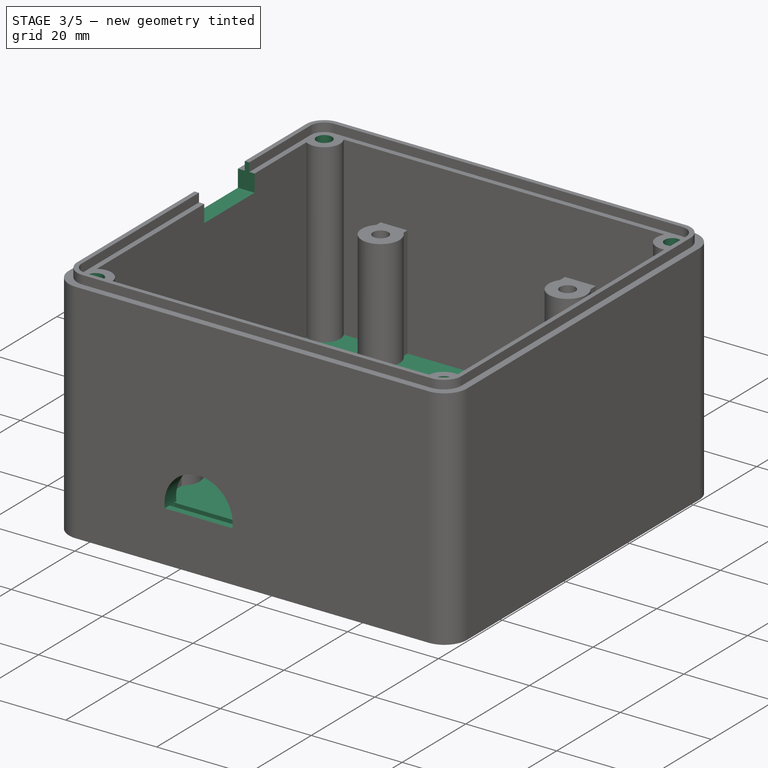
[diagram: stage 3 of 5 — iso view after this stage's code; geometry added in this stage tinted green]
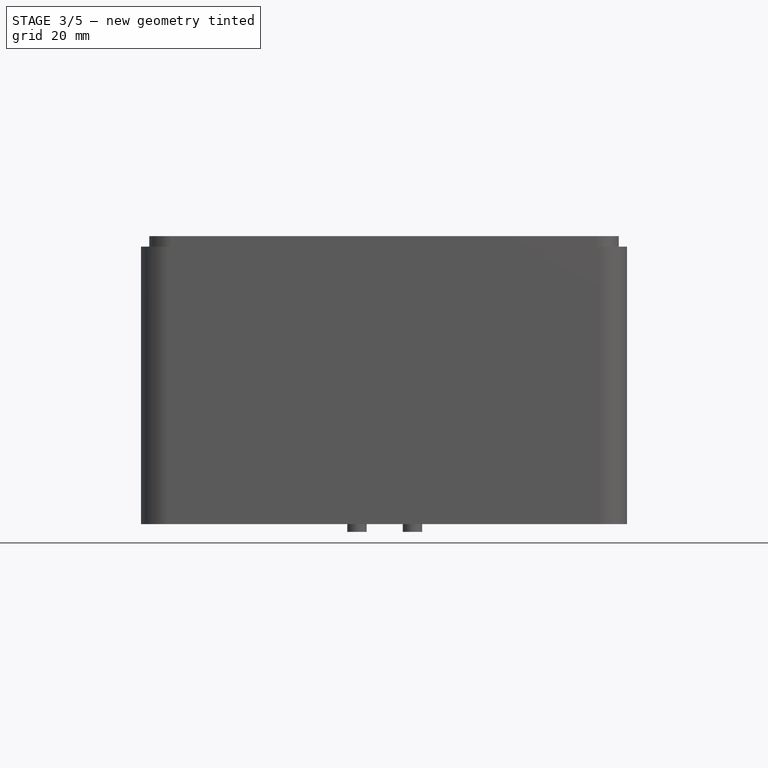
[diagram: stage 3 of 5 — front view after this stage's code; geometry added in this stage tinted green]
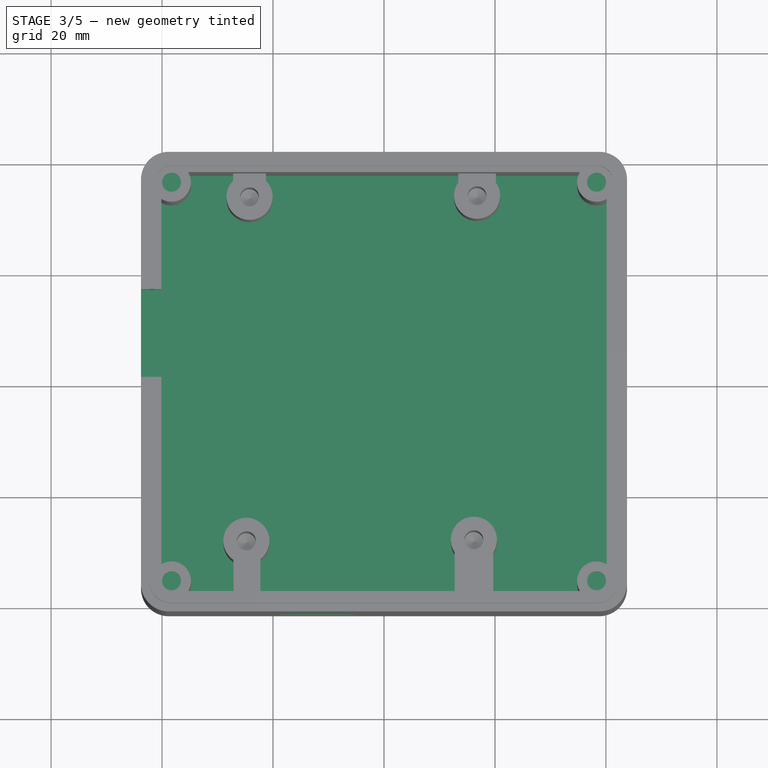
[diagram: stage 3 of 5 — top view after this stage's code; geometry added in this stage tinted green]
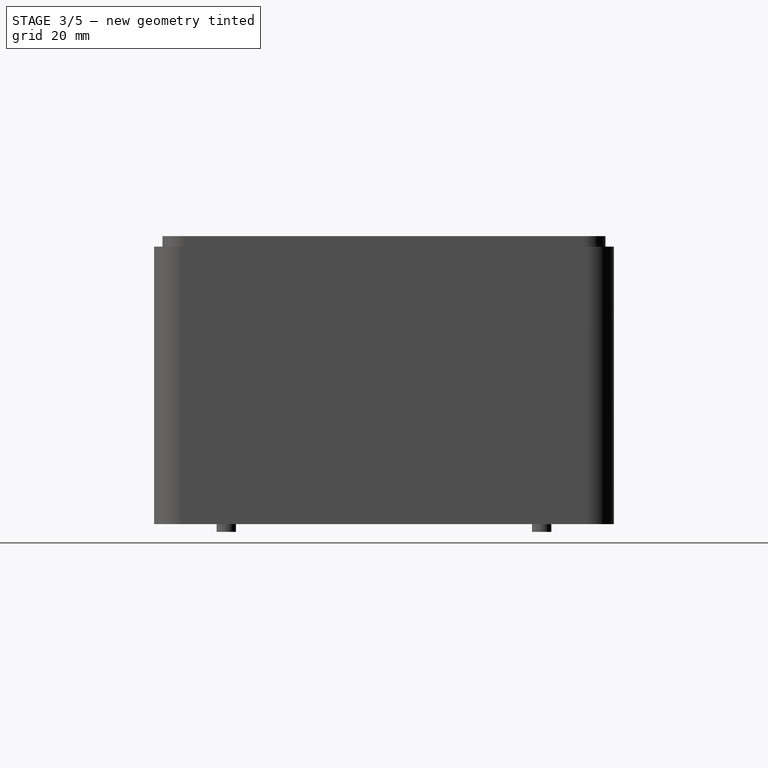
[diagram: stage 3 of 5 — right view after this stage's code; geometry added in this stage tinted green]
FEATURE [PartDesign::Plane] DatumPlane004  label="DATUM_SEGURA_SUPORTE_PLACA"
  AttachmentOffset = pos=(0,0,2.2) rot=(0,0,1;0rad)
  Length = 104.637
  MapMode = 5
  Placement = pos=(0,0,2.2) rot=(0,0,1;0rad)
  ResizeMode = 0
  Support = -> [XY_Plane]
  Width = 99.8773
FEATURE [PartDesign::Plane] DatumPlane006  label="DATUM_ENTRADA_ESP"
  AttachmentOffset = pos=(0,0,-43.8) rot=(0,0,1;0rad)
  Length = 98.8029
  MapMode = 5
  Placement = pos=(-43.8,9.7e-15,-9.7e-15) rot=(0.57735,0.57735,0.57735;2.0944rad)
  ResizeMode = 0
  Support = -> [YZ_Plane]
  Width = 92.863
FEATURE [Sketcher::SketchObject] Sketch012  label="SKETCH_ENTRADA_EP"
  FullyConstrained = false
  MapMode = 5
  Placement = pos=(-43.8,9.7e-15,-9.7e-15) rot=(0.57735,0.57735,0.57735;2.0944rad)
  Support = -> [DatumPlane006]
  sketch-geometry (4):
    g0: LineSegment StartX=16.65 StartY=51.9 StartZ=0 EndX=0.85 EndY=51.9 EndZ=0
    g1: LineSegment StartX=0.85 StartY=51.9 StartZ=0 EndX=0.85 EndY=46.2 EndZ=0
    g2: LineSegment StartX=0.85 StartY=46.2 StartZ=0 EndX=16.65 EndY=46.2 EndZ=0
    g3: LineSegment StartX=16.65 StartY=46.2 StartZ=0 EndX=16.65 EndY=51.9 EndZ=0
  constraints (8):
    c: Coincident(g0,g1)
    c: Coincident(g1,g2)
    c: Coincident(g2,g3)
    c: Coincident(g3,g0)
    c: Horizontal(g0)
    c: Horizontal(g2)
    c: Vertical(g1)
    c: Vertical(g3)
FEATURE [PartDesign::Plane] DatumPlane007  label="DATUM_FURO_ENTRADA_PARAFUSO"
  Length = 104.637
  MapMode = 5
  ResizeMode = 0
  Support = -> [XY_Plane]
  Width = 99.8773
FEATURE [Sketcher::SketchObject] Sketch016
  FullyConstrained = true
  MapMode = 5
  Support = -> [XY_Plane001]
  sketch-geometry (10):
    g0: ArcOfCircle CenterX=-38.8 CenterY=36.42 CenterZ=0 NormalX=0 NormalY=0 NormalZ=1 AngleXU=0 Radius=5 StartAngle=1.5708 EndAngle=3.14159
    g1: LineSegment StartX=-38.8 StartY=41.42 StartZ=0 EndX=38.8 EndY=41.42 EndZ=0
    g2: ArcOfCircle CenterX=38.8 CenterY=36.42 CenterZ=0 NormalX=0 NormalY=0 NormalZ=1 AngleXU=0 Radius=5 StartAngle=2e-16 EndAngle=1.5708
    g3: LineSegment StartX=43.8 StartY=36.42 StartZ=0 EndX=43.8 EndY=-36.42 EndZ=0
    g4: ArcOfCircle CenterX=38.8 CenterY=-36.42 CenterZ=0 NormalX=0 NormalY=0 NormalZ=1 AngleXU=0 Radius=5 StartAngle=4.71239 EndAngle=6.28319
    g5: LineSegment StartX=38.8 StartY=-41.42 StartZ=0 EndX=-38.8 EndY=-41.42 EndZ=0
    g6: ArcOfCircle CenterX=-38.8 CenterY=-36.42 CenterZ=0 NormalX=0 NormalY=0 NormalZ=1 AngleXU=0 Radius=5 StartAngle=3.14159 EndAngle=4.71239
    g7: LineSegment StartX=-43.8 StartY=-36.42 StartZ=0 EndX=-43.8 EndY=36.42 EndZ=0
    g8: GeomPoint X=-43.8 Y=41.42 Z=0
    g9: GeomPoint X=43.8 Y=-41.42 Z=0
  constraints (23):
    c: Tangent(g0,g1) = 1.5708
    c: Tangent(g1,g2) = 1.5708
    c: Tangent(g2,g3) = 1.5708
    c: Tangent(g3,g4) = 1.5708
    c: Tangent(g4,g5) = 1.5708
    c: Tangent(g5,g6) = 1.5708
    c: Tangent(g6,g7) = 1.5708
    c: Tangent(g7,g0) = 1.5708
    c: Horizontal(g1)
    c: Horizontal(g5)
    c: Vertical(g3)
    c: Vertical(g7)
    c: Equal(g0,g2)
    c: Equal(g2,g4)
    c: Equal(g4,g6)
    c: PointOnObject(g8,g1)
    c: PointOnObject(g8,g7)
    c: PointOnObject(g9,g3)
    c: PointOnObject(g9,g5)
    c: Radius(g2) = 5
    c: Symmetric(g2,g6,g-1)
    c: DistanceX(g1,g1) = 77.6
    c: DistanceY(g3,g3) = 72.84
FEATURE [PartDesign::Pad] Pad006
  Direction = (0,0,1)
  Length = 11.2
  Length2 = 10
  Profile = -> Sketch016
  ReferenceAxis = -> Sketch016 [N_Axis]
  Type = 0
FEATURE [Sketcher::SketchObject] Sketch017
  ExternalGeometry = -> [Pad006]
  FullyConstrained = true
  MapMode = 5
  Placement = pos=(0,0,11.2) rot=(0,0,1;0rad)
  Support = -> [Pad006]
  sketch-geometry (20):
    g0: ArcOfCircle CenterX=-38.3 CenterY=35.92 CenterZ=0 NormalX=0 NormalY=0 NormalZ=1 AngleXU=0 Radius=4 StartAngle=1.5708 EndAngle=3.14159
    g1: LineSegment StartX=-38.3 StartY=39.92 StartZ=0 EndX=38.3 EndY=39.92 EndZ=0
    g2: ArcOfCircle CenterX=38.3 CenterY=35.92 CenterZ=0 NormalX=0 NormalY=0 NormalZ=1 AngleXU=0 Radius=4 StartAngle=3e-16 EndAngle=1.5708
    g3: LineSegment StartX=42.3 StartY=35.92 StartZ=0 EndX=42.3 EndY=-35.92 EndZ=0
    g4: ArcOfCircle CenterX=38.3 CenterY=-35.92 CenterZ=0 NormalX=0 NormalY=0 NormalZ=1 AngleXU=0 Radius=4 StartAngle=4.71239 EndAngle=6.28319
    g5: LineSegment StartX=38.3 StartY=-39.92 StartZ=0 EndX=-38.3 EndY=-39.92 EndZ=0
    g6: ArcOfCircle CenterX=-38.3 CenterY=-35.92 CenterZ=0 NormalX=0 NormalY=0 NormalZ=1 AngleXU=0 Radius=4 StartAngle=3.14159 EndAngle=4.71239
    g7: LineSegment StartX=-42.3 StartY=-35.92 StartZ=0 EndX=-42.3 EndY=35.92 EndZ=0
    g8: GeomPoint X=-42.3 Y=39.92 Z=0
    g9: GeomPoint X=42.3 Y=-39.92 Z=0
    g10: ArcOfCircle CenterX=-37.8 CenterY=35.42 CenterZ=0 NormalX=0 NormalY=0 NormalZ=1 AngleXU=0 Radius=3 StartAngle=1.5708 EndAngle=3.14159
    g11: LineSegment StartX=-37.8 StartY=38.42 StartZ=0 EndX=37.8 EndY=38.42 EndZ=0
    g12: ArcOfCircle CenterX=37.8 CenterY=35.42 CenterZ=0 NormalX=0 NormalY=0 NormalZ=1 AngleXU=0 Radius=3 StartAngle=6e-16 EndAngle=1.5708
    g13: LineSegment StartX=40.8 StartY=35.42 StartZ=0 EndX=40.8 EndY=-35.42 EndZ=0
    g14: ArcOfCircle CenterX=37.8 CenterY=-35.42 CenterZ=0 NormalX=0 NormalY=0 NormalZ=1 AngleXU=0 Radius=3 StartAngle=4.71239 EndAngle=6.28319
    g15: LineSegment StartX=37.8 StartY=-38.42 StartZ=0 EndX=-37.8 EndY=-38.42 EndZ=0
    g16: ArcOfCircle CenterX=-37.8 CenterY=-35.42 CenterZ=0 NormalX=0 NormalY=0 NormalZ=1 AngleXU=0 Radius=3 StartAngle=3.14159 EndAngle=4.71239
    g17: LineSegment StartX=-40.8 StartY=-35.42 StartZ=0 EndX=-40.8 EndY=35.42 EndZ=0
    g18: GeomPoint X=-40.8 Y=38.42 Z=0
    g19: GeomPoint X=40.8 Y=-38.42 Z=0
  constraints (46):
    c: Tangent(g0,g1) = 1.5708
    c: Tangent(g1,g2) = 1.5708
    c: Tangent(g2,g3) = 1.5708
    c: Tangent(g3,g4) = 1.5708
    c: Tangent(g4,g5) = 1.5708
    c: Tangent(g5,g6) = 1.5708
    c: Tangent(g6,g7) = 1.5708
    c: Tangent(g7,g0) = 1.5708
    c: Horizontal(g1)
    c: Horizontal(g5)
    c: Vertical(g3)
    c: Vertical(g7)
    c: Equal(g0,g2)
    c: Equal(g2,g4)
    c: Equal(g4,g6)
    c: PointOnObject(g8,g1)
    c: PointOnObject(g8,g7)
    c: PointOnObject(g9,g3)
    c: PointOnObject(g9,g5)
    c: Tangent(g10,g11) = 1.5708
    c: Tangent(g11,g12) = 1.5708
    c: Tangent(g12,g13) = 1.5708
    c: Tangent(g13,g14) = 1.5708
    c: Tangent(g14,g15) = 1.5708
    c: Tangent(g15,g16) = 1.5708
    c: Tangent(g16,g17) = 1.5708
    c: Tangent(g17,g10) = 1.5708
    c: Horizontal(g11)
    c: Horizontal(g15)
    c: Vertical(g13)
    c: Vertical(g17)
    c: Equal(g10,g12)
    c: Equal(g12,g14)
    c: Equal(g14,g16)
    c: PointOnObject(g18,g11)
    c: PointOnObject(g18,g17)
    c: PointOnObject(g19,g13)
    c: PointOnObject(g19,g15)
    c: Symmetric(g6,g2,g-1)
    c: Symmetric(g12,g16,g-1)
    c: Radius(g0) = 4
    c: Radius(g10) = 3
    c: DistanceX(g-4,g0) = 1.5
    c: DistanceY(g0,g-5) = 1.5
    c: DistanceX(g0,g10) = 1.5
    c: DistanceY(g10,g0) = 1.5
FEATURE [PartDesign::Pocket] Pocket005
  BaseFeature = -> Pad006
  Direction = (0,0,-1)
  Length = 4.5
  Length2 = 5
  Profile = -> Sketch017
  ReferenceAxis = -> Sketch017 [N_Axis]
  Type = 0
FEATURE [PartDesign::Pocket] Pocket002  label="PAD_ENTRADA_ESP"
  BaseFeature = -> Pad005
  Direction = (-1,1e-16,-1e-16)
  Length = 5
  Length2 = 5
  Profile = -> Sketch012
  ReferenceAxis = -> Sketch012 [N_Axis]
  Reversed = true
  Type = 0
FEATURE [Sketcher::SketchObject] Sketch013  label="SKETCH_CABECA_PARAFUSO"
  ExternalGeometry = -> [Pocket002]
  FullyConstrained = true
  MapMode = 5
  Support = -> [DatumPlane007]
  sketch-geometry (8):
    g0: GeomPoint X=-38.3 Y=35.92 Z=0
    g1: GeomPoint X=-38.3 Y=-35.92 Z=0
    g2: GeomPoint X=38.3 Y=-35.92 Z=0
    g3: GeomPoint X=38.3 Y=35.92 Z=0
    g4: Circle CenterX=-38.3 CenterY=35.92 CenterZ=0 NormalX=0 NormalY=0 NormalZ=1 AngleXU=0 Radius=1.5
    g5: Circle CenterX=-38.3 CenterY=-35.92 CenterZ=0 NormalX=0 NormalY=0 NormalZ=1 AngleXU=0 Radius=1.5
    g6: Circle CenterX=38.3 CenterY=-35.92 CenterZ=0 NormalX=0 NormalY=0 NormalZ=1 AngleXU=0 Radius=1.5
    g7: Circle CenterX=38.3 CenterY=35.92 CenterZ=0 NormalX=0 NormalY=0 NormalZ=1 AngleXU=0 Radius=1.5
  constraints (16):
    c: DistanceY(g3,g-4) = 5.5
    c: DistanceX(g3,g-3) = 5.5
    c: Horizontal(g0,g3)
    c: DistanceX(g-6,g0) = 5.5
    c: DistanceY(g-5,g1) = 5.5
    c: DistanceX(g-7,g1) = 5.5
    c: DistanceY(g-5,g2) = 5.5
    c: DistanceX(g2,g-3) = 5.5
    c: Coincident(g4,g0)
    c: Coincident(g5,g1)
    c: Coincident(g6,g2)
    c: Coincident(g7,g3)
    c: Equal(g7,g6)
    c: Equal(g7,g5)
    c: Equal(g7,g4)
    c: Diameter(g7) = 3
FEATURE [PartDesign::Hole] Hole004
  BaseFeature = -> Pocket002
  CustomThreadClearance = 0
  Depth = 265.15
  DepthType = 1
  Diameter = 5.5
  DrillForDepth = false
  DrillPoint = 1
  DrillPointAngle = 118
  HoleCutCountersinkAngle = 90
  HoleCutCustomValues = false
  HoleCutDepth = 0
  HoleCutDiameter = 6.1
  HoleCutType = 0
  ModelThread = false
  Profile = -> Sketch034
  Tapered = false
  TaperedAngle = 90
  ThreadClass = 0
  ThreadDepth = 265.15
  ThreadDepthType = 0
  ThreadDirection = 0
  ThreadFit = 0
  ThreadSize = 13
  ThreadType = 1
  Threaded = false
  UseCustomThreadClearance = false
FEATURE [PartDesign::Hole] Hole005
  BaseFeature = -> Hole004
  CustomThreadClearance = 0
  Depth = 265.15
  DepthType = 1
  Diameter = 3.4
  DrillForDepth = false
  DrillPoint = 1
  DrillPointAngle = 118
  HoleCutCountersinkAngle = 90
  HoleCutCustomValues = false
  HoleCutDepth = 48.3
  HoleCutDiameter = 6.1
  HoleCutType = 1
  ModelThread = false
  Profile = -> Sketch013
  Reversed = true
  Tapered = false
  TaperedAngle = 90
  ThreadClass = 0
  ThreadDepth = 265.15
  ThreadDepthType = 0
  ThreadDirection = 0
  ThreadFit = 0
  ThreadSize = 9
  ThreadType = 1
  Threaded = false
  UseCustomThreadClearance = false
FEATURE [PartDesign::Body] Body001  label="TAMPA"
  Group = -> [Sketch016,Pad006,Sketch017,Pocket005,Sketch018,Pocket006,Sketch019,Hole002,Sketch021,Pocket008,Sketch022,Pocket009,Chamfer002,Chamfer,DatumPlane010,Sketch025,Pocket011,DatumPlane011,Sketch026,Pad007,Hole003,Sketch027,Pad008,Sketch028,Pad009,Sketch035,Pad010]
  Origin = -> Origin001
  Placement = pos=(-2e-15,1e-15,293.25) rot=(1,0,0;3.14159rad)
  Tip = -> Pad010
FEATURE [PartDesign::Plane] DatumPlane012  label="DATUM_PRENSA_CABO"
  AttachmentOffset = pos=(0,0,41.42) rot=(0,0,1;0rad)
  Length = 104.015
  MapMode = 5
  Placement = pos=(0,-41.42,-9.2e-15) rot=(1,0,0;1.5708rad)
  ResizeMode = 0
  Support = -> [XZ_Plane]
  Width = 93.3152
  expr: .AttachmentOffset.Base.z = 82.84 / 2
FEATURE [Sketcher::SketchObject] Sketch036  label="SKETCH_PRENSA_CABO"
  ExternalGeometry = -> [Hole005]
  FullyConstrained = true
  MapMode = 5
  Placement = pos=(0,-41.42,-9.2e-15) rot=(1,0,0;1.5708rad)
  Support = -> [DatumPlane012]
  sketch-geometry (1):
    g0: Circle CenterX=-11.8 CenterY=12.2 CenterZ=0 NormalX=0 NormalY=0 NormalZ=1 AngleXU=0 Radius=7.5
  constraints (3):
    c: Diameter(g0) = 15
    c: DistanceY(g-4,g0) = 10
    c: DistanceX(g-3,g0) = 27
FEATURE [PartDesign::Pocket] Pocket012  label="FURO_PRENSA_CABO"
  BaseFeature = -> Hole005
  Direction = (0,1,2e-16)
  Length = 4
  Length2 = 5
  Profile = -> Sketch036
  ReferenceAxis = -> Sketch036 [N_Axis]
  Type = 0
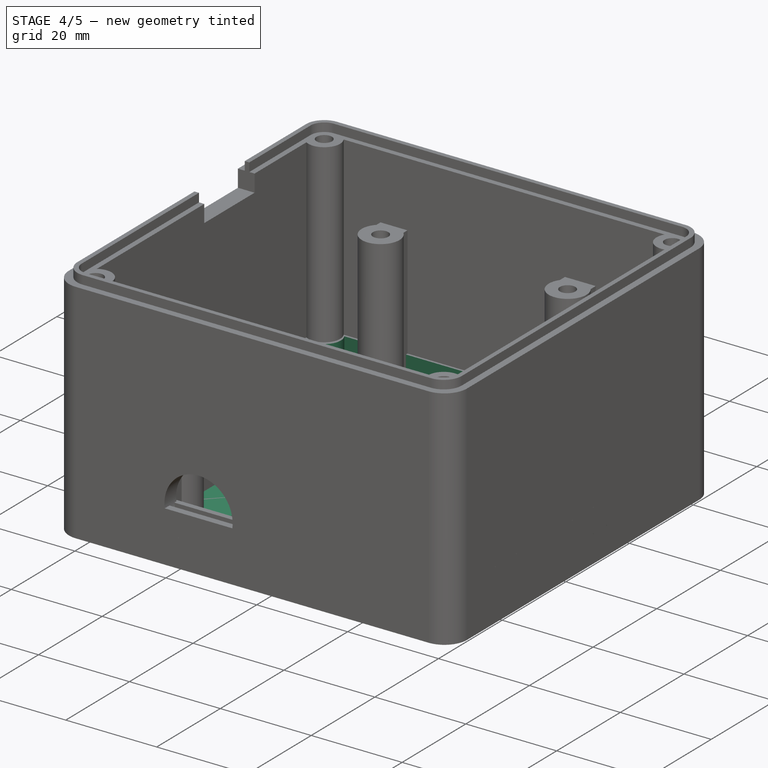
[diagram: stage 4 of 5 — iso view after this stage's code; geometry added in this stage tinted green]
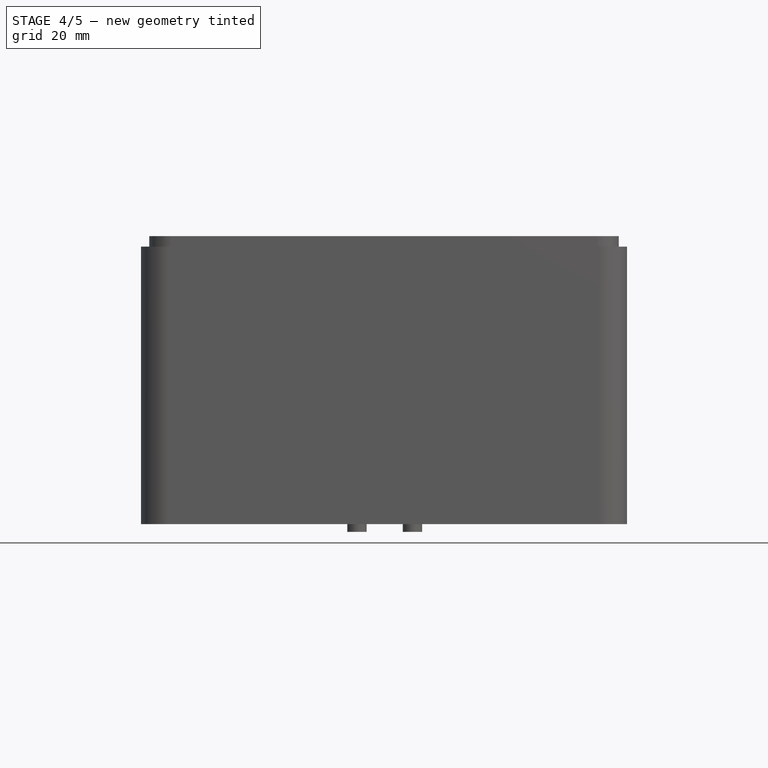
[diagram: stage 4 of 5 — front view after this stage's code; geometry added in this stage tinted green]
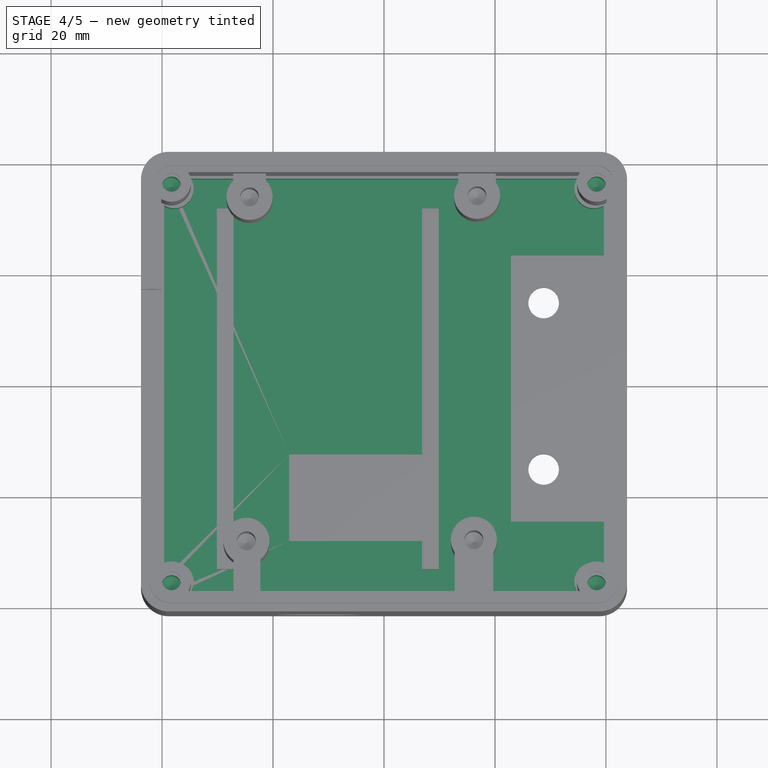
[diagram: stage 4 of 5 — top view after this stage's code; geometry added in this stage tinted green]
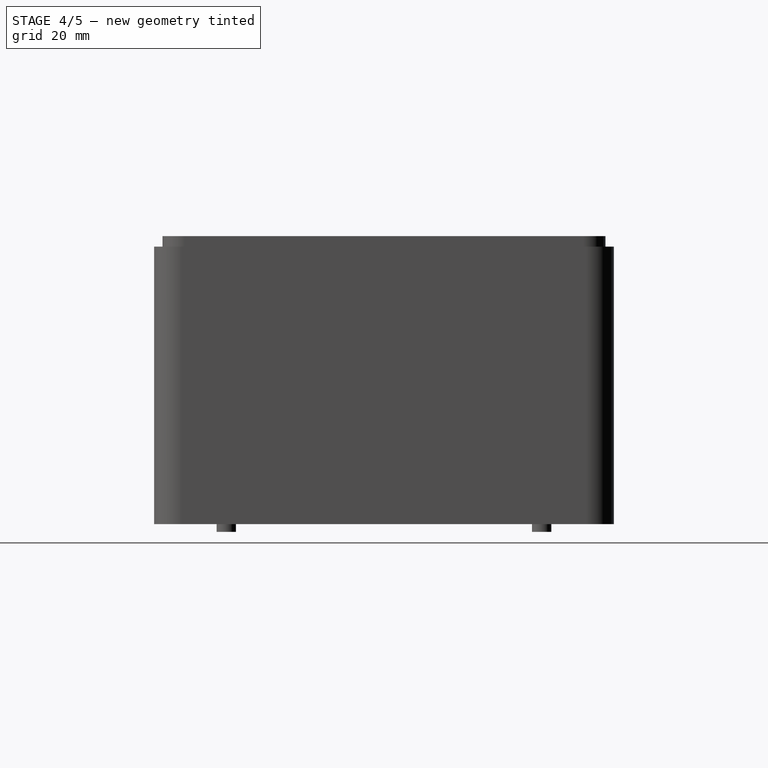
[diagram: stage 4 of 5 — right view after this stage's code; geometry added in this stage tinted green]
FEATURE [Sketcher::SketchObject] Sketch018
  ExternalGeometry = -> [Pocket005]
  FullyConstrained = true
  MapMode = 5
  Placement = pos=(0,0,11.2) rot=(0,0,1;0rad)
  Support = -> [Pocket005]
  sketch-geometry (9):
    g0: LineSegment StartX=-34.8165 StartY=37.25 StartZ=0 EndX=34.8165 EndY=37.25 EndZ=0
    g1: LineSegment StartX=39.63 StartY=32.4365 StartZ=0 EndX=39.63 EndY=-32.4365 EndZ=0
    g2: LineSegment StartX=34.8165 StartY=-37.25 StartZ=0 EndX=-34.8165 EndY=-37.25 EndZ=0
    g3: LineSegment StartX=-39.63 StartY=-32.4365 StartZ=0 EndX=-39.63 EndY=32.4365 EndZ=0
    g4: GeomPoint X=39.63 Y=-37.25 Z=0
    g5: ArcOfCircle CenterX=-37.8 CenterY=35.42 CenterZ=0 NormalX=0 NormalY=0 NormalZ=1 AngleXU=0 Radius=3.5 StartAngle=4.16219 EndAngle=6.83338
    g6: ArcOfCircle CenterX=-37.8 CenterY=-35.42 CenterZ=0 NormalX=0 NormalY=0 NormalZ=1 AngleXU=0 Radius=3.5 StartAngle=5.73299 EndAngle=8.40418
    g7: ArcOfCircle CenterX=37.8 CenterY=35.42 CenterZ=0 NormalX=0 NormalY=0 NormalZ=1 AngleXU=0 Radius=3.5 StartAngle=2.59139 EndAngle=5.26259
    g8: ArcOfCircle CenterX=37.8 CenterY=-35.42 CenterZ=0 NormalX=0 NormalY=0 NormalZ=1 AngleXU=0 Radius=3.5 StartAngle=1.0206 EndAngle=3.69179
  constraints (26):
    c: Horizontal(g0)
    c: Horizontal(g2)
    c: Vertical(g1)
    c: Vertical(g3)
    c: PointOnObject(g4,g1)
    c: PointOnObject(g4,g2)
    c: DistanceY(g-8,g2) = 1.17
    c: Coincident(g5,g-4)
    c: DistanceY(g0,g-4) = 1.17
    c: DistanceX(g-5,g3) = 1.17
    c: Coincident(g6,g-7)
    c: DistanceX(g1,g-10) = 1.17
    c: Coincident(g5,g3)
    c: Coincident(g5,g0)
    c: Coincident(g6,g2)
    c: Coincident(g6,g3)
    c: Radius(g5) = 3.5
    c: Radius(g6) = 3.5
    c: Coincident(g7,g-6)
    c: Coincident(g7,g0)
    c: Coincident(g7,g1)
    c: Radius(g7) = 3.5
    c: Coincident(g8,g-9)
    c: Coincident(g8,g1)
    c: Coincident(g8,g2)
    c: Radius(g8) = 3.5
FEATURE [PartDesign::Pocket] Pocket006
  BaseFeature = -> Pocket005
  Direction = (0,0,-1)
  Length = 7.74
  Length2 = 5
  Profile = -> Sketch018
  ReferenceAxis = -> Sketch018 [N_Axis]
  Type = 0
FEATURE [Sketcher::SketchObject] Sketch019
  ExternalGeometry = -> [Pocket006]
  FullyConstrained = true
  MapMode = 5
  Placement = pos=(0,0,11.2) rot=(0,0,1;0rad)
  Support = -> [Pocket006]
  sketch-geometry (8):
    g0: GeomPoint X=-38.3 Y=35.92 Z=0
    g1: GeomPoint X=38.3 Y=35.92 Z=0
    g2: GeomPoint X=38.3 Y=-35.92 Z=0
    g3: GeomPoint X=-38.3 Y=-35.92 Z=0
    g4: Circle CenterX=38.3 CenterY=-35.92 CenterZ=0 NormalX=0 NormalY=0 NormalZ=1 AngleXU=0 Radius=1.5
    g5: Circle CenterX=-38.3 CenterY=-35.92 CenterZ=0 NormalX=0 NormalY=0 NormalZ=1 AngleXU=0 Radius=1.5
    g6: Circle CenterX=-38.3 CenterY=35.92 CenterZ=0 NormalX=0 NormalY=0 NormalZ=1 AngleXU=0 Radius=1.5
    g7: Circle CenterX=38.3 CenterY=35.92 CenterZ=0 NormalX=0 NormalY=0 NormalZ=1 AngleXU=0 Radius=1.5
  constraints (16):
    c: DistanceY(g-6,g3) = 5.5
    c: DistanceX(g-3,g3) = 5.5
    c: DistanceY(g0,g-4) = 5.5
    c: DistanceX(g-3,g0) = 5.5
    c: DistanceY(g-6,g2) = 5.5
    c: DistanceX(g2,g-5) = 5.5
    c: DistanceX(g1,g-5) = 5.5
    c: DistanceY(g1,g-4) = 5.5
    c: Coincident(g4,g2)
    c: Coincident(g5,g3)
    c: Coincident(g6,g0)
    c: Coincident(g7,g1)
    c: Equal(g7,g4)
    c: Equal(g7,g5)
    c: Equal(g7,g6)
    c: Diameter(g7) = 3
FEATURE [PartDesign::Hole] Hole002
  BaseFeature = -> Pocket006
  CustomThreadClearance = 0
  Depth = 9.5
  DepthType = 0
  Diameter = 3.4
  DrillForDepth = false
  DrillPoint = 1
  DrillPointAngle = 118
  HoleCutCountersinkAngle = 90
  HoleCutCustomValues = false
  HoleCutDepth = 3.4
  HoleCutDiameter = 4
  HoleCutType = 0
  ModelThread = false
  Profile = -> Sketch019
  Tapered = false
  TaperedAngle = 90
  ThreadClass = 0
  ThreadDepth = 9.5
  ThreadDepthType = 0
  ThreadDirection = 0
  ThreadFit = 0
  ThreadSize = 9
  ThreadType = 1
  Threaded = false
  UseCustomThreadClearance = false
FEATURE [Sketcher::SketchObject] Sketch021
  ExternalGeometry = -> [Hole002]
  FullyConstrained = true
  MapMode = 5
  Placement = pos=(0,0,0) rot=(1,0,0;3.14159rad)
  Support = -> [Hole002]
  sketch-geometry (6):
    g0: LineSegment StartX=-17.1 StartY=41.42 StartZ=0 EndX=-17.1 EndY=27.92 EndZ=0
    g1: LineSegment StartX=-43.8 StartY=27.92 StartZ=0 EndX=-17.1 EndY=27.92 EndZ=0
    g2: LineSegment StartX=-17.1 StartY=27.92 StartZ=0 EndX=8.9 EndY=27.92 EndZ=0
    g3: LineSegment StartX=8.9 StartY=27.92 StartZ=0 EndX=8.9 EndY=12.28 EndZ=0
    g4: LineSegment StartX=8.9 StartY=12.28 StartZ=0 EndX=-17.1 EndY=12.28 EndZ=0
    g5: LineSegment StartX=-17.1 StartY=12.28 StartZ=0 EndX=-17.1 EndY=27.92 EndZ=0
  constraints (18):
    c: Vertical(g0)
    c: DistanceY(g0,g0) = 13.5
    c: Horizontal(g1)
    c: DistanceX(g1,g1) = 26.7
    c: Coincident(g2,g3)
    c: Coincident(g3,g4)
    c: Coincident(g4,g5)
    c: Coincident(g5,g2)
    c: Horizontal(g2)
    c: Horizontal(g4)
    c: Vertical(g3)
    c: Vertical(g5)
    c: Coincident(g2,g1)
    c: Coincident(g0,g2)
    c: DistanceX(g2,g2) = 26
    c: DistanceY(g3,g3) = 15.64
    c: PointOnObject(g1,g-4)
    c: PointOnObject(g0,g-3)
FEATURE [PartDesign::Pocket] Pocket008
  BaseFeature = -> Hole002
  Direction = (0,0,1)
  Length = 5
  Length2 = 5
  Profile = -> Sketch021
  ReferenceAxis = -> Sketch021 [N_Axis]
  Type = 0
FEATURE [Sketcher::SketchObject] Sketch022
  ExternalGeometry = -> [Pocket008]
  FullyConstrained = true
  MapMode = 5
  Placement = pos=(0,0,0) rot=(1,0,0;3.14159rad)
  Support = -> [Pocket008]
  expr: Constraints[8] = 15 / 2
  sketch-geometry (5):
    g0: LineSegment StartX=22.9 StartY=24.42 StartZ=0 EndX=43.8 EndY=24.42 EndZ=0
    g1: LineSegment StartX=43.8 StartY=24.42 StartZ=0 EndX=43.8 EndY=-23.58 EndZ=0
    g2: LineSegment StartX=43.8 StartY=-23.58 StartZ=0 EndX=22.9 EndY=-23.58 EndZ=0
    g3: LineSegment StartX=22.9 StartY=-23.58 StartZ=0 EndX=22.9 EndY=24.42 EndZ=0
    g4: GeomPoint X=30.4 Y=24.42 Z=0
  constraints (13):
    c: Coincident(g0,g1)
    c: Coincident(g1,g2)
    c: Coincident(g2,g3)
    c: Coincident(g3,g0)
    c: Horizontal(g0)
    c: Horizontal(g2)
    c: Vertical(g3)
    c: PointOnObject(g4,g0)
    c: DistanceX(g0,g4) = 7.5
    c: DistanceX(g-4,g4) = 21.5
    c: DistanceY(g0,g-3) = 17
    c: DistanceY(g1,g1) = 48
    c: Tangent(g1,g-5)
FEATURE [PartDesign::Pocket] Pocket009
  BaseFeature = -> Pocket008
  Direction = (0,0,1)
  Length = 5
  Length2 = 5
  Profile = -> Sketch022
  ReferenceAxis = -> Sketch022 [N_Axis]
  Type = 0
FEATURE [PartDesign::Chamfer] Chamfer002
  Angle = 45
  Base = -> Pocket009 [Edge15,Edge16,Edge18,Edge17,Edge19]
  BaseFeature = -> Pocket009
  ChamferType = 0
  FlipDirection = false
  Size = 0.8
  Size2 = 1
  SupportTransform = false
  UseAllEdges = false
FEATURE [PartDesign::Chamfer] Chamfer
  Angle = 45
  Base = -> Chamfer002 [Edge37,Edge33,Edge35,Edge51]
  BaseFeature = -> Chamfer002
  ChamferType = 0
  FlipDirection = false
  Size = 1
  Size2 = 1
  SupportTransform = false
  UseAllEdges = false
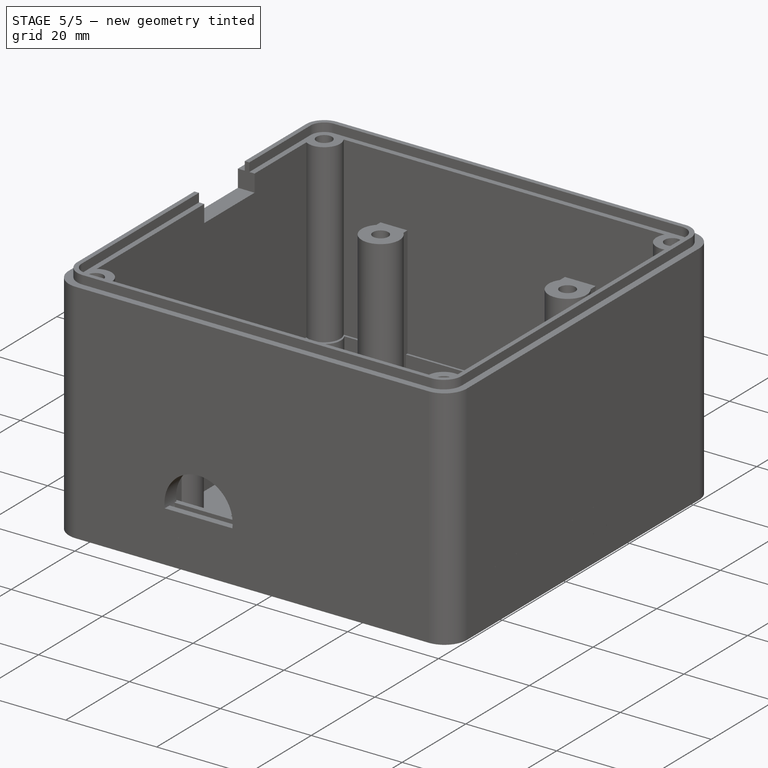
[diagram: stage 5 of 5 — iso view after this stage's code; geometry added in this stage tinted green]
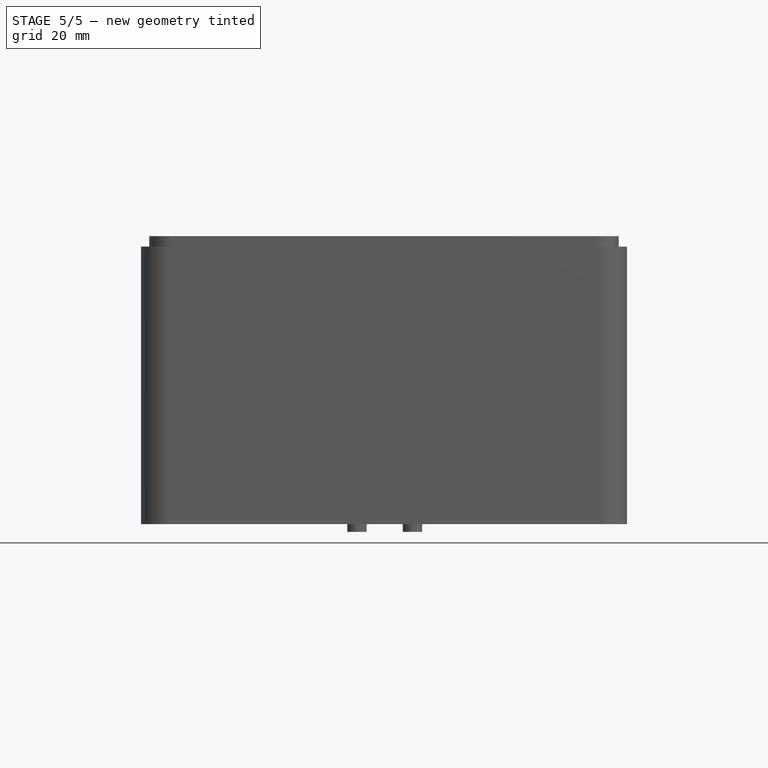
[diagram: stage 5 of 5 — front view after this stage's code; geometry added in this stage tinted green]
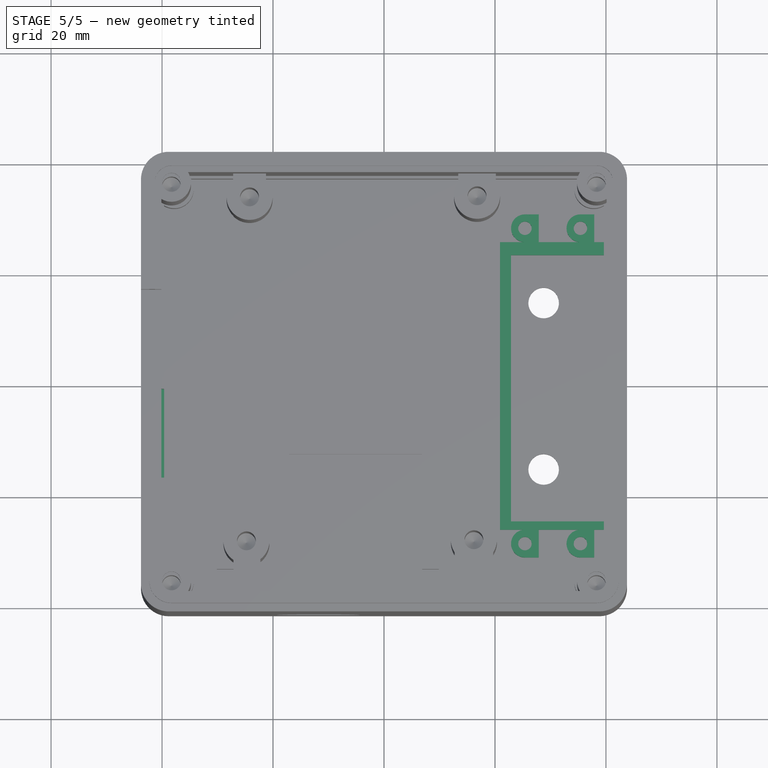
[diagram: stage 5 of 5 — top view after this stage's code; geometry added in this stage tinted green]
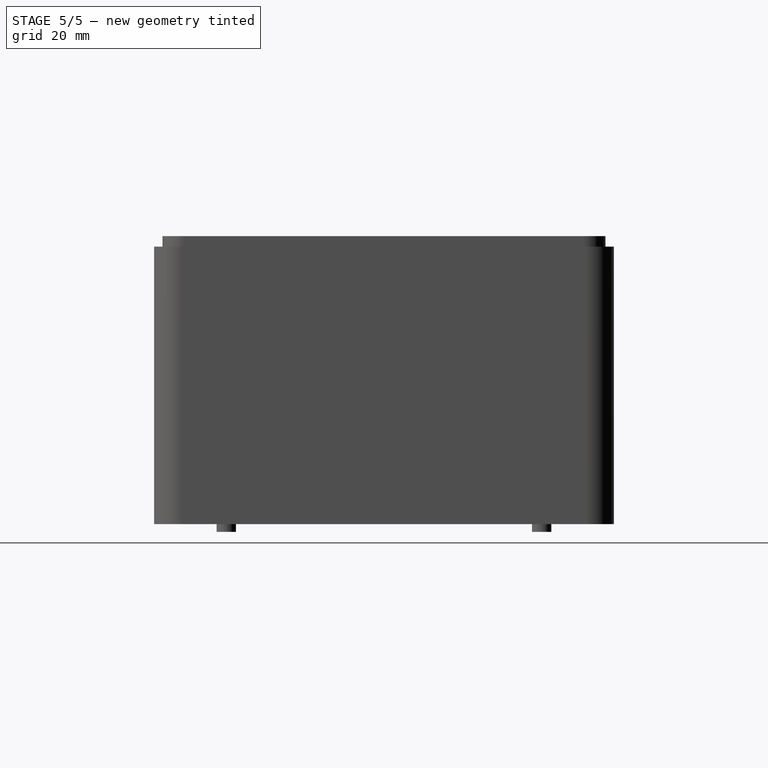
[diagram: stage 5 of 5 — right view after this stage's code; geometry added in this stage tinted green]
FEATURE [PartDesign::Plane] DatumPlane010  label="DATUM_EXT_ENTRADA_ESP"
  AttachmentOffset = pos=(0,0,-43.8) rot=(0,0,1;0rad)
  Length = 95.7117
  MapMode = 5
  Placement = pos=(-43.8,9.7e-15,-9.7e-15) rot=(0.57735,0.57735,0.57735;2.0944rad)
  ResizeMode = 0
  Support = -> [YZ_Plane001]
  Width = 62.8717
FEATURE [Sketcher::SketchObject] Sketch025  label="SKETCH_EXT_ENTRADA_ESP"
  ExternalGeometry = -> [Chamfer]
  FullyConstrained = true
  MapMode = 5
  Placement = pos=(-43.8,9.7e-15,-9.7e-15) rot=(0.57735,0.57735,0.57735;2.0944rad)
  Support = -> [DatumPlane010]
  sketch-geometry (4):
    g0: LineSegment StartX=-0.62 StartY=6 StartZ=0 EndX=-16.62 EndY=6 EndZ=0
    g1: LineSegment StartX=-16.62 StartY=6 StartZ=0 EndX=-16.62 EndY=11.2 EndZ=0
    g2: LineSegment StartX=-16.62 StartY=11.2 StartZ=0 EndX=-0.62 EndY=11.2 EndZ=0
    g3: LineSegment StartX=-0.62 StartY=11.2 StartZ=0 EndX=-0.62 EndY=6 EndZ=0
  constraints (11):
    c: Coincident(g0,g1)
    c: Coincident(g1,g2)
    c: Coincident(g3,g0)
    c: Horizontal(g0)
    c: Vertical(g1)
    c: Vertical(g3)
    c: DistanceY(g1,g1) = 5.2
    c: Coincident(g2,g3)
    c: DistanceX(g-3,g0) = 19.8
    c: DistanceX(g-3,g0) = 35.8
    c: Tangent(g2,g-4)
FEATURE [PartDesign::Pocket] Pocket011
  BaseFeature = -> Chamfer
  Direction = (-1,1e-16,-1e-16)
  Length = 5
  Length2 = 5
  Profile = -> Sketch025
  ReferenceAxis = -> Sketch025 [N_Axis]
  Reversed = true
  Type = 0
FEATURE [PartDesign::Plane] DatumPlane011  label="DATUM_SUPORTE_BOTOES"
  AttachmentOffset = pos=(0,0,3.46) rot=(0,0,1;0rad)
  Length = 104.637
  MapMode = 5
  Placement = pos=(0,0,3.46) rot=(0,0,1;0rad)
  ResizeMode = 0
  Support = -> [XY_Plane001]
  Width = 99.8773
FEATURE [Sketcher::SketchObject] Sketch026
  ExternalGeometry = -> [Pocket011]
  FullyConstrained = true
  MapMode = 5
  Placement = pos=(0,0,3.46) rot=(0,0,1;0rad)
  Support = -> [DatumPlane011]
  sketch-geometry (4):
    g0: Circle CenterX=35.4 CenterY=-28.42 CenterZ=0 NormalX=0 NormalY=0 NormalZ=1 AngleXU=0 Radius=2.5
    g1: Circle CenterX=25.4 CenterY=-28.42 CenterZ=0 NormalX=0 NormalY=0 NormalZ=1 AngleXU=0 Radius=2.5
    g2: Circle CenterX=35.4 CenterY=28.42 CenterZ=0 NormalX=0 NormalY=0 NormalZ=1 AngleXU=0 Radius=2.5
    g3: Circle CenterX=25.4 CenterY=28.42 CenterZ=0 NormalX=0 NormalY=0 NormalZ=1 AngleXU=0 Radius=2.5
  constraints (12):
    c: Diameter(g0) = 5
    c: Diameter(g1) = 5
    c: DistanceX(g1,g0) = 10
    c: Diameter(g3) = 5
    c: Diameter(g2) = 5
    c: DistanceX(g3,g2) = 10
    c: Horizontal(g0,g1)
    c: Horizontal(g3,g2)
    c: Vertical(g1,g3)
    c: DistanceY(g2,g-4) = 13
    c: DistanceY(g-5,g1) = 13
    c: DistanceX(g-6,g1) = 16.5
FEATURE [PartDesign::Pad] Pad007
  BaseFeature = -> Pocket011
  Direction = (0,0,1)
  Length = 2
  Length2 = 10
  Profile = -> Sketch026
  ReferenceAxis = -> Sketch026 [N_Axis]
  Type = 0
FEATURE [PartDesign::Hole] Hole003
  BaseFeature = -> Pad007
  CustomThreadClearance = 0
  Depth = 10
  DepthType = 0
  Diameter = 2.42
  DrillForDepth = false
  DrillPoint = 1
  DrillPointAngle = 118
  HoleCutCountersinkAngle = 90
  HoleCutCustomValues = false
  HoleCutDepth = 0
  HoleCutDiameter = 6.1
  HoleCutType = 0
  ModelThread = false
  Profile = -> Sketch026
  Reversed = true
  Tapered = false
  TaperedAngle = 90
  ThreadClass = 0
  ThreadDepth = 10
  ThreadDepthType = 0
  ThreadDirection = 0
  ThreadFit = 0
  ThreadSize = 7
  ThreadType = 1
  Threaded = false
  UseCustomThreadClearance = false
FEATURE [Sketcher::SketchObject] Sketch027
  ExternalGeometry = -> [Hole003]
  FullyConstrained = true
  MapMode = 5
  Placement = pos=(0,0,3.46) rot=(0,0,1;0rad)
  Support = -> [DatumPlane011]
  sketch-geometry (8):
    g0: LineSegment StartX=27.9 StartY=30.92 StartZ=0 EndX=25.4 EndY=30.92 EndZ=0
    g1: LineSegment StartX=27.9 StartY=25.92 StartZ=0 EndX=25.4 EndY=25.92 EndZ=0
    g2: LineSegment StartX=27.9 StartY=-30.92 StartZ=0 EndX=25.4 EndY=-30.92 EndZ=0
    g3: LineSegment StartX=27.9 StartY=-25.92 StartZ=0 EndX=25.4 EndY=-25.92 EndZ=0
    g4: LineSegment StartX=27.9 StartY=-25.92 StartZ=0 EndX=27.9 EndY=-30.92 EndZ=0
    g5: LineSegment StartX=27.9 StartY=30.92 StartZ=0 EndX=27.9 EndY=25.92 EndZ=0
    g6: ArcOfCircle CenterX=25.4 CenterY=28.42 CenterZ=0 NormalX=0 NormalY=0 NormalZ=1 AngleXU=0 Radius=2.5 StartAngle=4.71239 EndAngle=7.85398
    g7: ArcOfCircle CenterX=25.4 CenterY=-28.42 CenterZ=0 NormalX=0 NormalY=0 NormalZ=1 AngleXU=0 Radius=2.5 StartAngle=4.71239 EndAngle=7.85398
  constraints (24):
    c: Horizontal(g0)
    c: Horizontal(g1)
    c: Horizontal(g2)
    c: Horizontal(g3)
    c: Coincident(g4,g3)
    c: Coincident(g4,g2)
    c: Coincident(g5,g1)
    c: Coincident(g5,g0)
    c: Vertical(g0,g1)
    c: Vertical(g4)
    c: Vertical(g3,g2)
    c: Vertical(g5)
    c: Coincident(g6,g0)
    c: Coincident(g6,g1)
    c: Tangent(g5,g6)
    c: Vertical(g6,g0)
    c: Coincident(g6,g-3)
    c: PointOnObject(g1,g-3)
    c: Coincident(g7,g3)
    c: Coincident(g7,g2)
    c: Coincident(g7,g-4)
    c: Tangent(g4,g7)
    c: PointOnObject(g3,g-5)
    c: Vertical(g3,g7)
FEATURE [PartDesign::Pad] Pad008
  BaseFeature = -> Hole003
  Direction = (0,0,1)
  Length = 2.1
  Length2 = 10
  Profile = -> Sketch027
  ReferenceAxis = -> Sketch027 [N_Axis]
  Type = 0
FEATURE [Sketcher::SketchObject] Sketch028
  ExternalGeometry = -> [Pad008]
  FullyConstrained = true
  MapMode = 5
  Placement = pos=(0,0,3.46) rot=(0,0,1;0rad)
  Support = -> [DatumPlane011]
  sketch-geometry (8):
    g0: LineSegment StartX=35.4 StartY=25.92 StartZ=0 EndX=37.9 EndY=25.92 EndZ=0
    g1: LineSegment StartX=37.9 StartY=25.92 StartZ=0 EndX=37.9 EndY=30.92 EndZ=0
    g2: LineSegment StartX=37.9 StartY=30.92 StartZ=0 EndX=35.4 EndY=30.92 EndZ=0
    g3: LineSegment StartX=35.4 StartY=-30.92 StartZ=0 EndX=37.9 EndY=-30.92 EndZ=0
    g4: LineSegment StartX=37.9 StartY=-30.92 StartZ=0 EndX=37.9 EndY=-25.92 EndZ=0
    g5: LineSegment StartX=37.9 StartY=-25.92 StartZ=0 EndX=35.4 EndY=-25.92 EndZ=0
    g6: ArcOfCircle CenterX=35.4 CenterY=-28.42 CenterZ=0 NormalX=0 NormalY=0 NormalZ=1 AngleXU=0 Radius=2.5 StartAngle=4.71239 EndAngle=7.85398
    g7: ArcOfCircle CenterX=35.4 CenterY=28.42 CenterZ=0 NormalX=0 NormalY=0 NormalZ=1 AngleXU=0 Radius=2.5 StartAngle=4.71239 EndAngle=7.85398
  constraints (24):
    c: Coincident(g2,g1)
    c: Vertical(g1)
    c: Horizontal(g0)
    c: Horizontal(g2)
    c: Coincident(g1,g0)
    c: Horizontal(g3)
    c: Coincident(g4,g3)
    c: Vertical(g4)
    c: Coincident(g5,g4)
    c: Horizontal(g5)
    c: Coincident(g6,g3)
    c: Coincident(g6,g5)
    c: Tangent(g4,g6)
    c: Vertical(g3,g6)
    c: Vertical(g5,g6)
    c: Vertical(g0,g2)
    c: Tangent(g1,g7)
    c: Vertical(g0,g7)
    c: Coincident(g7,g2)
    c: Coincident(g7,g0)
    c: Coincident(g7,g-3)
    c: PointOnObject(g2,g-3)
    c: Coincident(g6,g-4)
    c: PointOnObject(g3,g-4)
FEATURE [PartDesign::Pad] Pad009
  BaseFeature = -> Pad008
  Direction = (0,0,1)
  Length = 1.99
  Length2 = 10
  Profile = -> Sketch028
  ReferenceAxis = -> Sketch028 [N_Axis]
  Type = 0
FEATURE [Sketcher::SketchObject] Sketch035
  ExternalGeometry = -> [Pad009]
  FullyConstrained = true
  MapMode = 5
  Placement = pos=(0,0,3.46) rot=(0,0,1;0rad)
  Support = -> [DatumPlane011]
  sketch-geometry (8):
    g0: LineSegment StartX=20.9 StartY=-25.92 StartZ=0 EndX=20.9 EndY=25.92 EndZ=0
    g1: LineSegment StartX=20.9 StartY=25.92 StartZ=0 EndX=39.63 EndY=25.92 EndZ=0
    g2: LineSegment StartX=20.9 StartY=-25.92 StartZ=0 EndX=39.63 EndY=-25.92 EndZ=0
    g3: LineSegment StartX=39.63 StartY=-25.92 StartZ=0 EndX=39.63 EndY=-24.42 EndZ=0
    g4: LineSegment StartX=39.63 StartY=-24.42 StartZ=0 EndX=22.9 EndY=-24.42 EndZ=0
    g5: LineSegment StartX=22.9 StartY=-24.42 StartZ=0 EndX=22.9 EndY=23.58 EndZ=0
    g6: LineSegment StartX=22.9 StartY=23.58 StartZ=0 EndX=39.63 EndY=23.58 EndZ=0
    g7: LineSegment StartX=39.63 StartY=23.58 StartZ=0 EndX=39.63 EndY=25.92 EndZ=0
  constraints (19):
    c: Vertical(g0)
    c: Coincident(g1,g0)
    c: Coincident(g2,g0)
    c: Tangent(g1,g-4)
    c: PointOnObject(g1,g-6)
    c: PointOnObject(g2,g-7)
    c: Coincident(g3,g2)
    c: Coincident(g3,g-9)
    c: Coincident(g4,g3)
    c: Coincident(g4,g-9)
    c: Coincident(g5,g4)
    c: Coincident(g5,g-10)
    c: Coincident(g6,g5)
    c: Coincident(g6,g-10)
    c: Coincident(g7,g6)
    c: Coincident(g7,g1)
    c: DistanceX(g0,g5) = 2
    c: Tangent(g2,g-5)
    c: DistanceX(g-11,g-6) = 4.23
FEATURE [PartDesign::Pad] Pad010
  BaseFeature = -> Pad009
  Direction = (0,0,1)
  Length = 2
  Length2 = 10
  Profile = -> Sketch035
  ReferenceAxis = -> Sketch035 [N_Axis]
  Type = 0
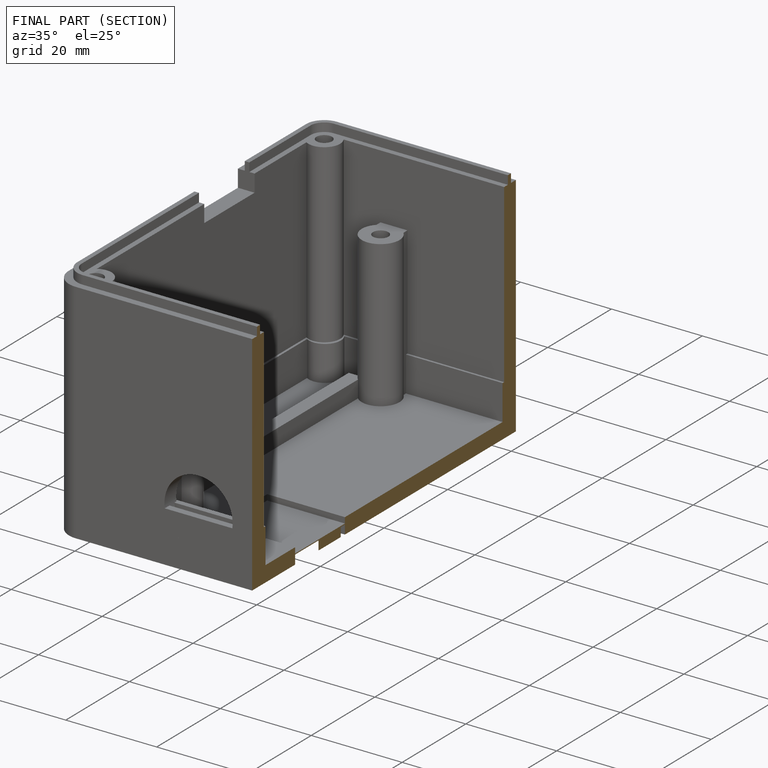
[diagram: finished part — half-section view (interior)]
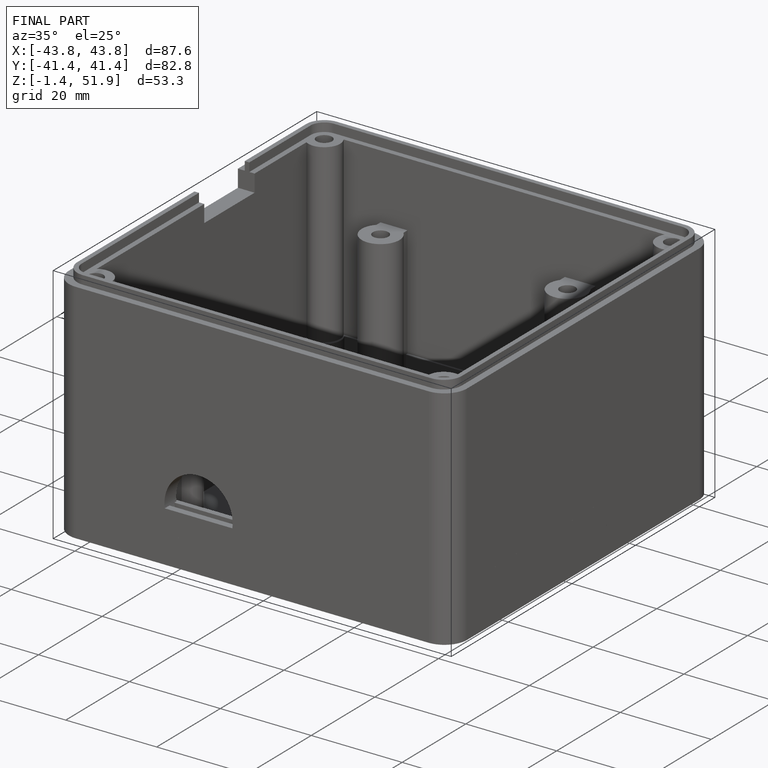
[diagram: finished part — iso view with bounding-box wireframe]
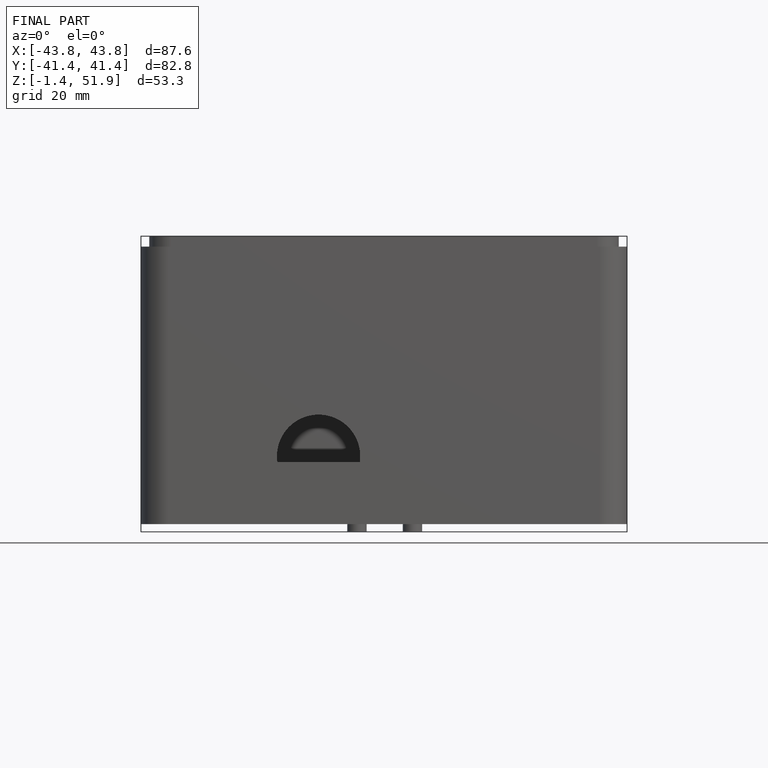
[diagram: finished part — front view with bounding-box wireframe]
